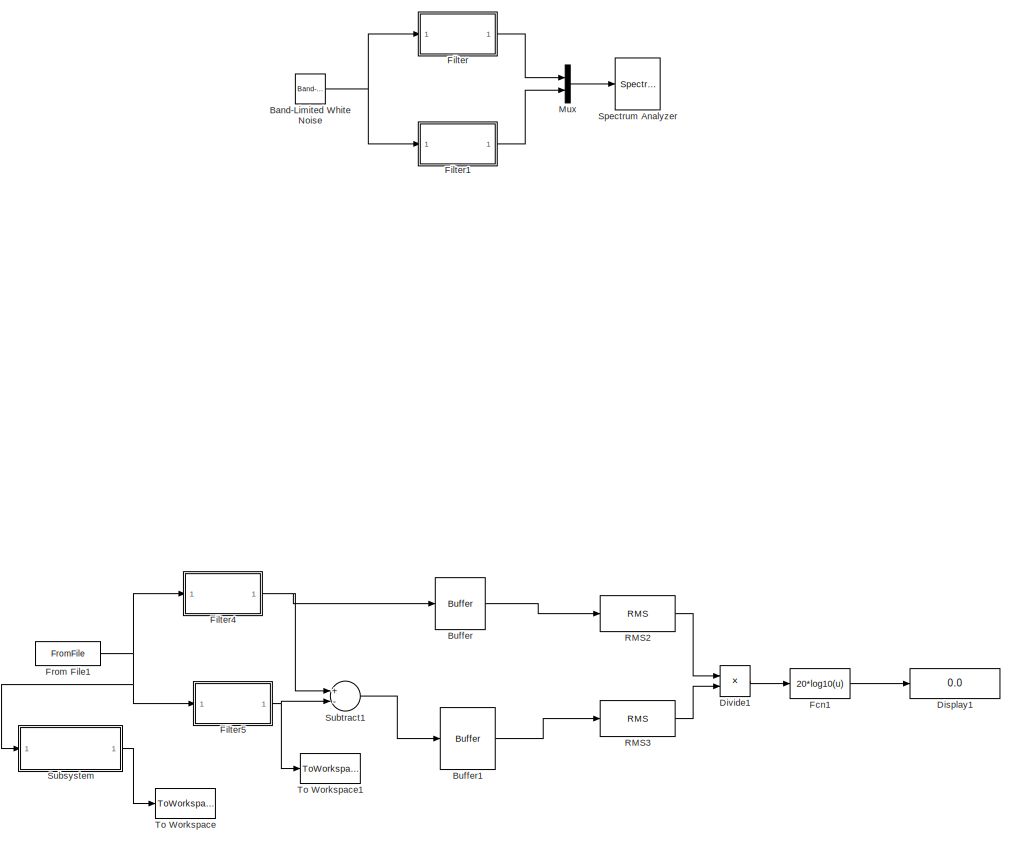
[diagram: root canvas - part 1/2, full width, middle band]
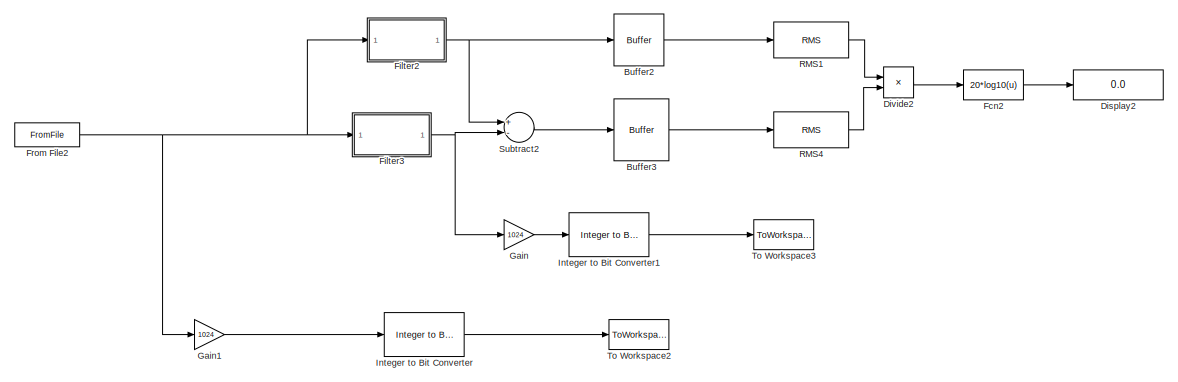
[diagram: root canvas - part 2/2, full width, bottom band]
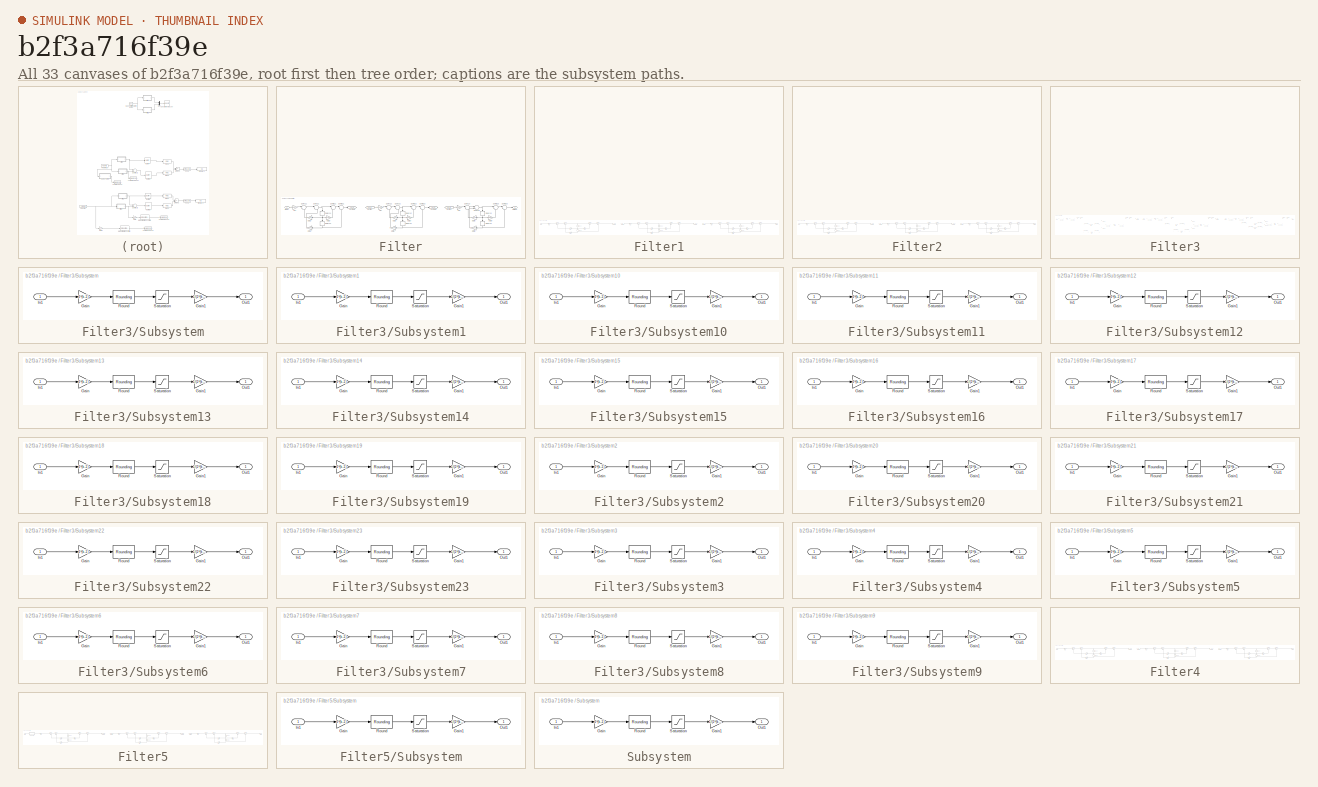
[diagram: thumbnail index - all 33 canvases of the model, root first then tree order]
MODEL slx_b2f3a716f39e
KIND model
CONFIG AbsTol = auto
CONFIG EnableMultiTasking = off
CONFIG FixedStep = auto
CONFIG MaxStep = auto
CONFIG MinStep = auto
CONFIG RelTol = 1e-3
CONFIG SampleTimeConstraint = Unconstrained
CONFIG Solver = VariableStepAuto
CONFIG SolverName = VariableStepAuto
CONFIG StartTime = 0.0
CONFIG StopTime = 10.0
BLOCK [Reference] Band-Limited White Noise  REF=simulink/Sources/Band-Limited
White Noise
  Ports = [0, 1]
  SourceBlock = simulink/Sources/Band-Limited\nWhite Noise
  SourceProductBaseCode = SL
  SourceProductName = Simulink
  SourceType = Band-Limited White Noise.
BLOCK [Buffer] Buffer
  OutputFrames = off
BLOCK [Buffer] Buffer1
  OutputFrames = off
BLOCK [Buffer] Buffer2
  OutputFrames = off
BLOCK [Buffer] Buffer3
  OutputFrames = off
BLOCK [Display] Display1
  Decimation = 1
  Ports = [1]
BLOCK [Display] Display2
  Decimation = 1
  Ports = [1]
BLOCK [Product] Divide1
  InputSameDT = off
  Inputs = */
  OutDataTypeStr = Inherit: Inherit via internal rule
  Ports = [2, 1]
  RndMeth = Floor
  SaturateOnIntegerOverflow = off
BLOCK [Product] Divide2
  InputSameDT = off
  Inputs = */
  OutDataTypeStr = Inherit: Inherit via internal rule
  Ports = [2, 1]
  RndMeth = Floor
  SaturateOnIntegerOverflow = off
BLOCK [Fcn] Fcn1
  Expr = 20*log10(u)
BLOCK [Fcn] Fcn2
  Expr = 20*log10(u)
BLOCK [SubSystem] Filter
  ErrorFcn = dspFilterRealizedInBasicElemsAlgLoopErrFcnCallback
  Ports = [1, 1]
  RequestExecContextInheritance = off
  Tag = FilterWizardSubSystem
  UserDataPersistent = on
  Variant = off
BLOCK [Delay] Filter/Delay11
  DelayLength = 1
  InitialCondition = 0
  InputPortMap = u0
  Ports = [1, 1]
BLOCK [Delay] Filter/Delay12
  DelayLength = 1
  InitialCondition = 0
  InputPortMap = u0
  Ports = [1, 1]
BLOCK [Delay] Filter/Delay13
  DelayLength = 1
  InitialCondition = 0
  InputPortMap = u0
  Ports = [1, 1]
BLOCK [Delay] Filter/Delay21
  DelayLength = 1
  InitialCondition = 0
  InputPortMap = u0
  Ports = [1, 1]
BLOCK [Delay] Filter/Delay22
  DelayLength = 1
  InitialCondition = 0
  InputPortMap = u0
  Ports = [1, 1]
BLOCK [Delay] Filter/Delay23
  DelayLength = 1
  InitialCondition = 0
  InputPortMap = u0
  Ports = [1, 1]
BLOCK [Inport] Filter/Input
  IconDisplay = Port number
BLOCK [Outport] Filter/Output
  IconDisplay = Port number
BLOCK [From] Filter/SectIn2
  GotoTag = Sect1
BLOCK [From] Filter/SectIn3
  GotoTag = Sect2
BLOCK [Goto] Filter/SectOut1
  GotoTag = Sect1
BLOCK [Goto] Filter/SectOut2
  GotoTag = Sect2
BLOCK [Sum] Filter/SumA21
  IconShape = round
  InputSameDT = off
  Inputs = |+-
  Ports = [2, 1]
  RndMeth = Nearest
BLOCK [Sum] Filter/SumA22
  IconShape = round
  InputSameDT = off
  Inputs = |+-
  Ports = [2, 1]
  RndMeth = Nearest
BLOCK [Sum] Filter/SumA23
  IconShape = round
  InputSameDT = off
  Inputs = |+-
  Ports = [2, 1]
  RndMeth = Nearest
BLOCK [Sum] Filter/SumA31
  IconShape = round
  InputSameDT = off
  Inputs = |+-
  Ports = [2, 1]
  RndMeth = Nearest
BLOCK [Sum] Filter/SumA32
  IconShape = round
  InputSameDT = off
  Inputs = |+-
  Ports = [2, 1]
  RndMeth = Nearest
BLOCK [Sum] Filter/SumA33
  IconShape = round
  InputSameDT = off
  Inputs = |+-
  Ports = [2, 1]
  RndMeth = Nearest
BLOCK [Sum] Filter/SumB21
  IconShape = round
  InputSameDT = off
  Inputs = |++
  Ports = [2, 1]
  RndMeth = Nearest
BLOCK [Sum] Filter/SumB22
  IconShape = round
  InputSameDT = off
  Inputs = |++
  Ports = [2, 1]
  RndMeth = Nearest
BLOCK [Sum] Filter/SumB23
  IconShape = round
  InputSameDT = off
  Inputs = |++
  Ports = [2, 1]
  RndMeth = Nearest
BLOCK [Sum] Filter/SumB31
  IconShape = round
  InputSameDT = off
  Inputs = |++
  Ports = [2, 1]
  RndMeth = Nearest
BLOCK [Sum] Filter/SumB32
  IconShape = round
  InputSameDT = off
  Inputs = |++
  Ports = [2, 1]
  RndMeth = Nearest
BLOCK [Sum] Filter/SumB33
  IconShape = round
  InputSameDT = off
  Inputs = |++
  Ports = [2, 1]
  RndMeth = Nearest
BLOCK [Gain] Filter/a(2)(1)
  Gain = -1.72237599432170896
  ParamDataTypeStr = double
  RndMeth = Nearest
BLOCK [Gain] Filter/a(2)(2)
  Gain = -1.72705256097480264
  ParamDataTypeStr = double
  RndMeth = Nearest
BLOCK [Gain] Filter/a(2)(3)
  Gain = -1.73755518539052489
  ParamDataTypeStr = double
  RndMeth = Nearest
BLOCK [Gain] Filter/a(3)(1)
  Gain = 0.868608295135569031
  ParamDataTypeStr = double
  RndMeth = Nearest
BLOCK [Gain] Filter/a(3)(2)
  Gain = 0.76575272159101615
  ParamDataTypeStr = double
  RndMeth = Nearest
BLOCK [Gain] Filter/a(3)(3)
  Gain = 0.962513882588003633
  ParamDataTypeStr = double
  RndMeth = Nearest
BLOCK [Gain] Filter/b(2)(1)
  Gain = -1.37905756840912064
  ParamDataTypeStr = double
  RndMeth = Nearest
BLOCK [Gain] Filter/b(2)(2)
  Gain = 0.142312974670270875
  ParamDataTypeStr = double
  RndMeth = Nearest
BLOCK [Gain] Filter/b(2)(3)
  Gain = -1.58625205435101768
  ParamDataTypeStr = double
  RndMeth = Nearest
BLOCK [Gain] Filter/s(1)
  Gain = 0.499132479456427858
  ParamDataTypeStr = double
  RndMeth = Nearest
BLOCK [Gain] Filter/s(2)
  Gain = 0.416654319236726134
  ParamDataTypeStr = double
  RndMeth = Nearest
BLOCK [Gain] Filter/s(3)
  Gain = 0.00991281595558810534
  ParamDataTypeStr = double
  RndMeth = Nearest
BLOCK [SubSystem] Filter1
  ErrorFcn = dspFilterRealizedInBasicElemsAlgLoopErrFcnCallback
  Ports = [1, 1]
  RequestExecContextInheritance = off
  Tag = FilterWizardSubSystem
  UserDataPersistent = on
  Variant = off
BLOCK [Delay] Filter1/Delay11
  DelayLength = 1
  InitialCondition = 0
  InputPortMap = u0
  Ports = [1, 1]
BLOCK [Delay] Filter1/Delay12
  DelayLength = 1
  InitialCondition = 0
  InputPortMap = u0
  Ports = [1, 1]
BLOCK [Delay] Filter1/Delay13
  DelayLength = 1
  InitialCondition = 0
  InputPortMap = u0
  Ports = [1, 1]
BLOCK [Delay] Filter1/Delay21
  DelayLength = 1
  InitialCondition = 0
  InputPortMap = u0
  Ports = [1, 1]
BLOCK [Delay] Filter1/Delay22
  DelayLength = 1
  InitialCondition = 0
  InputPortMap = u0
  Ports = [1, 1]
BLOCK [Delay] Filter1/Delay23
  DelayLength = 1
  InitialCondition = 0
  InputPortMap = u0
  Ports = [1, 1]
BLOCK [Inport] Filter1/Input
  IconDisplay = Port number
BLOCK [Outport] Filter1/Output
  IconDisplay = Port number
BLOCK [From] Filter1/SectIn2
  GotoTag = Sect1
BLOCK [From] Filter1/SectIn3
  GotoTag = Sect2
BLOCK [Goto] Filter1/SectOut1
  GotoTag = Sect1
BLOCK [Goto] Filter1/SectOut2
  GotoTag = Sect2
BLOCK [Sum] Filter1/SumA21
  IconShape = round
  InputSameDT = off
  Inputs = |+-
  Ports = [2, 1]
  RndMeth = Nearest
BLOCK [Sum] Filter1/SumA22
  IconShape = round
  InputSameDT = off
  Inputs = |+-
  Ports = [2, 1]
  RndMeth = Nearest
BLOCK [Sum] Filter1/SumA23
  IconShape = round
  InputSameDT = off
  Inputs = |+-
  Ports = [2, 1]
  RndMeth = Nearest
BLOCK [Sum] Filter1/SumA31
  IconShape = round
  InputSameDT = off
  Inputs = |+-
  Ports = [2, 1]
  RndMeth = Nearest
BLOCK [Sum] Filter1/SumA32
  IconShape = round
  InputSameDT = off
  Inputs = |+-
  Ports = [2, 1]
  RndMeth = Nearest
BLOCK [Sum] Filter1/SumA33
  IconShape = round
  InputSameDT = off
  Inputs = |+-
  Ports = [2, 1]
  RndMeth = Nearest
BLOCK [Sum] Filter1/SumB21
  IconShape = round
  InputSameDT = off
  Inputs = |++
  Ports = [2, 1]
  RndMeth = Nearest
BLOCK [Sum] Filter1/SumB22
  IconShape = round
  InputSameDT = off
  Inputs = |++
  Ports = [2, 1]
  RndMeth = Nearest
BLOCK [Sum] Filter1/SumB23
  IconShape = round
  InputSameDT = off
  Inputs = |++
  Ports = [2, 1]
  RndMeth = Nearest
BLOCK [Sum] Filter1/SumB31
  IconShape = round
  InputSameDT = off
  Inputs = |++
  Ports = [2, 1]
  RndMeth = Nearest
BLOCK [Sum] Filter1/SumB32
  IconShape = round
  InputSameDT = off
  Inputs = |++
  Ports = [2, 1]
  RndMeth = Nearest
BLOCK [Sum] Filter1/SumB33
  IconShape = round
  InputSameDT = off
  Inputs = |++
  Ports = [2, 1]
  RndMeth = Nearest
BLOCK [Gain] Filter1/a(2)(1)
  Gain = round(-1.72237599432170896*2^(ck-1))/(2^(ck-1))
  ParamDataTypeStr = double
  RndMeth = Nearest
BLOCK [Gain] Filter1/a(2)(2)
  Gain = round(-1.72705256097480264*2^(ck-1))/(2^(ck-1))
  ParamDataTypeStr = double
  RndMeth = Nearest
BLOCK [Gain] Filter1/a(2)(3)
  Gain = round(-1.73755518539052489*2^(ck-1))/(2^(ck-1))
  ParamDataTypeStr = double
  RndMeth = Nearest
BLOCK [Gain] Filter1/a(3)(1)
  Gain = round(0.868608295135569031*2^(ck-1))/(2^(ck-1))
  ParamDataTypeStr = double
  RndMeth = Nearest
BLOCK [Gain] Filter1/a(3)(2)
  Gain = round(0.76575272159101615*2^(ck-1))/(2^(ck-1))
  ParamDataTypeStr = double
  RndMeth = Nearest
BLOCK [Gain] Filter1/a(3)(3)
  Gain = round(0.962513882588003633*2^(ck-1))/(2^(ck-1))
  ParamDataTypeStr = double
  RndMeth = Nearest
BLOCK [Gain] Filter1/b(2)(1)
  Gain = round(-1.37905756840912064*2^(ck-1))/(2^(ck-1))
  ParamDataTypeStr = double
  RndMeth = Nearest
BLOCK [Gain] Filter1/b(2)(2)
  Gain = round(0.142312974670270875*2^(ck-1))/(2^(ck-1))
  ParamDataTypeStr = double
  RndMeth = Nearest
BLOCK [Gain] Filter1/b(2)(3)
  Gain = round(-1.58625205435101768*2^(ck-1))/(2^(ck-1))
  ParamDataTypeStr = double
  RndMeth = Nearest
BLOCK [Gain] Filter1/s(1)
  Gain = round(0.499132479456427858*2^(ck-1))/(2^(ck-1))
  ParamDataTypeStr = double
  RndMeth = Nearest
BLOCK [Gain] Filter1/s(2)
  Gain = round(0.416654319236726134*2^(ck-1))/(2^(ck-1))
  ParamDataTypeStr = double
  RndMeth = Nearest
BLOCK [Gain] Filter1/s(3)
  Gain = round(0.00991281595558810534*2^(ck-1))/(2^(ck-1))
  ParamDataTypeStr = double
  RndMeth = Nearest
BLOCK [SubSystem] Filter2
  ErrorFcn = dspFilterRealizedInBasicElemsAlgLoopErrFcnCallback
  Ports = [1, 1]
  RequestExecContextInheritance = off
  Tag = FilterWizardSubSystem
  UserDataPersistent = on
  Variant = off
BLOCK [Delay] Filter2/Delay11
  DelayLength = 1
  InitialCondition = 0
  InputPortMap = u0
  Ports = [1, 1]
BLOCK [Delay] Filter2/Delay12
  DelayLength = 1
  InitialCondition = 0
  InputPortMap = u0
  Ports = [1, 1]
BLOCK [Delay] Filter2/Delay13
  DelayLength = 1
  InitialCondition = 0
  InputPortMap = u0
  Ports = [1, 1]
BLOCK [Delay] Filter2/Delay21
  DelayLength = 1
  InitialCondition = 0
  InputPortMap = u0
  Ports = [1, 1]
BLOCK [Delay] Filter2/Delay22
  DelayLength = 1
  InitialCondition = 0
  InputPortMap = u0
  Ports = [1, 1]
BLOCK [Delay] Filter2/Delay23
  DelayLength = 1
  InitialCondition = 0
  InputPortMap = u0
  Ports = [1, 1]
BLOCK [Inport] Filter2/Input
  IconDisplay = Port number
BLOCK [Outport] Filter2/Output
  IconDisplay = Port number
BLOCK [From] Filter2/SectIn2
  GotoTag = Sect1
BLOCK [From] Filter2/SectIn3
  GotoTag = Sect2
BLOCK [Goto] Filter2/SectOut1
  GotoTag = Sect1
BLOCK [Goto] Filter2/SectOut2
  GotoTag = Sect2
BLOCK [Sum] Filter2/SumA21
  IconShape = round
  InputSameDT = off
  Inputs = |+-
  Ports = [2, 1]
  RndMeth = Nearest
BLOCK [Sum] Filter2/SumA22
  IconShape = round
  InputSameDT = off
  Inputs = |+-
  Ports = [2, 1]
  RndMeth = Nearest
BLOCK [Sum] Filter2/SumA23
  IconShape = round
  InputSameDT = off
  Inputs = |+-
  Ports = [2, 1]
  RndMeth = Nearest
BLOCK [Sum] Filter2/SumA31
  IconShape = round
  InputSameDT = off
  Inputs = |+-
  Ports = [2, 1]
  RndMeth = Nearest
BLOCK [Sum] Filter2/SumA32
  IconShape = round
  InputSameDT = off
  Inputs = |+-
  Ports = [2, 1]
  RndMeth = Nearest
BLOCK [Sum] Filter2/SumA33
  IconShape = round
  InputSameDT = off
  Inputs = |+-
  Ports = [2, 1]
  RndMeth = Nearest
BLOCK [Sum] Filter2/SumB21
  IconShape = round
  InputSameDT = off
  Inputs = |++
  Ports = [2, 1]
  RndMeth = Nearest
BLOCK [Sum] Filter2/SumB22
  IconShape = round
  InputSameDT = off
  Inputs = |++
  Ports = [2, 1]
  RndMeth = Nearest
BLOCK [Sum] Filter2/SumB23
  IconShape = round
  InputSameDT = off
  Inputs = |++
  Ports = [2, 1]
  RndMeth = Nearest
BLOCK [Sum] Filter2/SumB31
  IconShape = round
  InputSameDT = off
  Inputs = |++
  Ports = [2, 1]
  RndMeth = Nearest
BLOCK [Sum] Filter2/SumB32
  IconShape = round
  InputSameDT = off
  Inputs = |++
  Ports = [2, 1]
  RndMeth = Nearest
BLOCK [Sum] Filter2/SumB33
  IconShape = round
  InputSameDT = off
  Inputs = |++
  Ports = [2, 1]
  RndMeth = Nearest
BLOCK [Gain] Filter2/a(2)(1)
  Gain = -1.72237599432170896
  ParamDataTypeStr = double
  RndMeth = Nearest
BLOCK [Gain] Filter2/a(2)(2)
  Gain = -1.72705256097480264
  ParamDataTypeStr = double
  RndMeth = Nearest
BLOCK [Gain] Filter2/a(2)(3)
  Gain = -1.73755518539052489
  ParamDataTypeStr = double
  RndMeth = Nearest
BLOCK [Gain] Filter2/a(3)(1)
  Gain = 0.868608295135569031
  ParamDataTypeStr = double
  RndMeth = Nearest
BLOCK [Gain] Filter2/a(3)(2)
  Gain = 0.76575272159101615
  ParamDataTypeStr = double
  RndMeth = Nearest
BLOCK [Gain] Filter2/a(3)(3)
  Gain = 0.962513882588003633
  ParamDataTypeStr = double
  RndMeth = Nearest
BLOCK [Gain] Filter2/b(2)(1)
  Gain = -1.37905756840912064
  ParamDataTypeStr = double
  RndMeth = Nearest
BLOCK [Gain] Filter2/b(2)(2)
  Gain = 0.142312974670270875
  ParamDataTypeStr = double
  RndMeth = Nearest
BLOCK [Gain] Filter2/b(2)(3)
  Gain = -1.58625205435101768
  ParamDataTypeStr = double
  RndMeth = Nearest
BLOCK [Gain] Filter2/s(1)
  Gain = 0.499132479456427858
  ParamDataTypeStr = double
  RndMeth = Nearest
BLOCK [Gain] Filter2/s(2)
  Gain = 0.416654319236726134
  ParamDataTypeStr = double
  RndMeth = Nearest
BLOCK [Gain] Filter2/s(3)
  Gain = 0.00991281595558810534
  ParamDataTypeStr = double
  RndMeth = Nearest
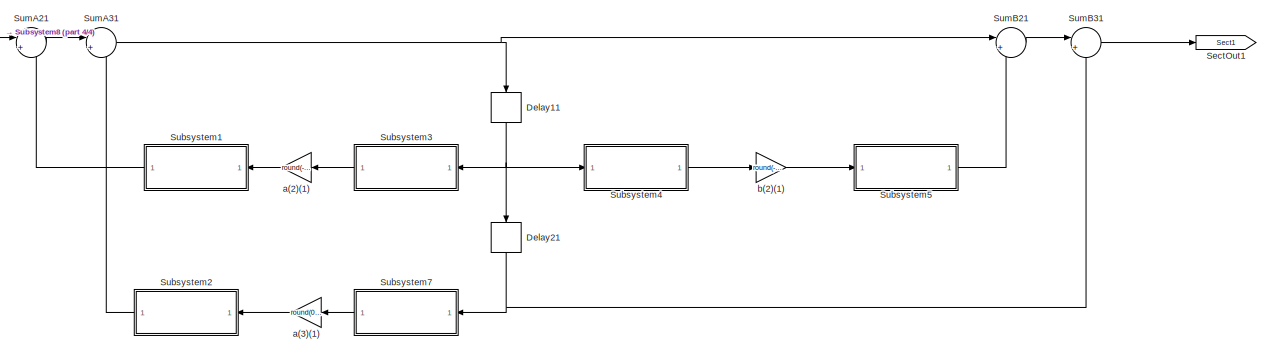
[diagram: Filter3 - part 1/4, left side, full height]
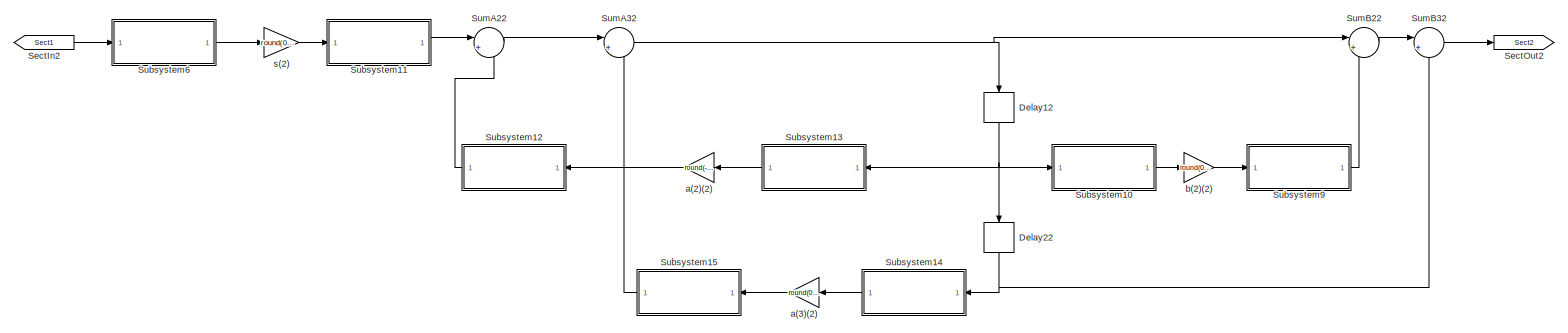
[diagram: Filter3 - part 2/4, center side, full height]
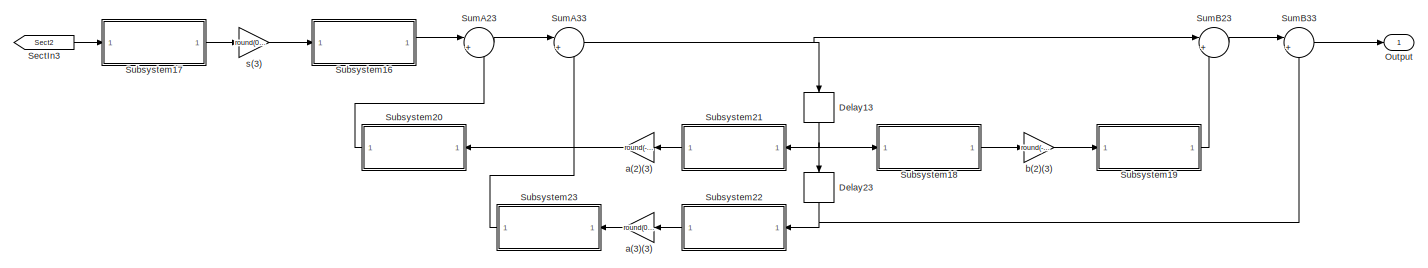
[diagram: Filter3 - part 3/4, middle right region]
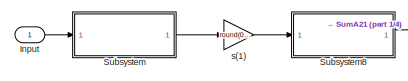
[diagram: Filter3 - part 4/4, top left region]
BLOCK [SubSystem] Filter3
  ErrorFcn = dspFilterRealizedInBasicElemsAlgLoopErrFcnCallback
  Ports = [1, 1]
  RequestExecContextInheritance = off
  Tag = FilterWizardSubSystem
  UserDataPersistent = on
  Variant = off
BLOCK [Delay] Filter3/Delay11
  DelayLength = 1
  InitialCondition = 0
  InputPortMap = u0
  Ports = [1, 1]
BLOCK [Delay] Filter3/Delay12
  DelayLength = 1
  InitialCondition = 0
  InputPortMap = u0
  Ports = [1, 1]
BLOCK [Delay] Filter3/Delay13
  DelayLength = 1
  InitialCondition = 0
  InputPortMap = u0
  Ports = [1, 1]
BLOCK [Delay] Filter3/Delay21
  DelayLength = 1
  InitialCondition = 0
  InputPortMap = u0
  Ports = [1, 1]
BLOCK [Delay] Filter3/Delay22
  DelayLength = 1
  InitialCondition = 0
  InputPortMap = u0
  Ports = [1, 1]
BLOCK [Delay] Filter3/Delay23
  DelayLength = 1
  InitialCondition = 0
  InputPortMap = u0
  Ports = [1, 1]
BLOCK [Inport] Filter3/Input
  IconDisplay = Port number
BLOCK [Outport] Filter3/Output
  IconDisplay = Port number
BLOCK [From] Filter3/SectIn2
  GotoTag = Sect1
BLOCK [From] Filter3/SectIn3
  GotoTag = Sect2
BLOCK [Goto] Filter3/SectOut1
  GotoTag = Sect1
BLOCK [Goto] Filter3/SectOut2
  GotoTag = Sect2
BLOCK [SubSystem] Filter3/Subsystem
  Ports = [1, 1]
  RequestExecContextInheritance = off
  Variant = off
BLOCK [Gain] Filter3/Subsystem/Gain
  Gain = 2^(k-1)
  OutDataTypeStr = Inherit: Inherit via internal rule
  ParamDataTypeStr = Inherit: Inherit via internal rule
  SaturateOnIntegerOverflow = off
BLOCK [Gain] Filter3/Subsystem/Gain1
  Gain = 1/(2^(k-1))
  OutDataTypeStr = Inherit: Inherit via internal rule
  ParamDataTypeStr = Inherit: Inherit via internal rule
  SaturateOnIntegerOverflow = off
BLOCK [Inport] Filter3/Subsystem/In1
  IconDisplay = Port number
BLOCK [Outport] Filter3/Subsystem/Out1
  IconDisplay = Port number
BLOCK [Rounding] Filter3/Subsystem/Round
  Operator = round
BLOCK [Saturate] Filter3/Subsystem/Saturation
  InputPortMap = u0
  LowerLimit = -2^(k+s-1)
  Ports = [1, 1]
  UpperLimit = 2^(k+s+-1)-1
BLOCK [SubSystem] Filter3/Subsystem1
  Ports = [1, 1]
  RequestExecContextInheritance = off
  Variant = off
BLOCK [Gain] Filter3/Subsystem1/Gain
  Gain = 2^(k-1)
  OutDataTypeStr = Inherit: Inherit via internal rule
  ParamDataTypeStr = Inherit: Inherit via internal rule
  SaturateOnIntegerOverflow = off
BLOCK [Gain] Filter3/Subsystem1/Gain1
  Gain = 1/(2^(k-1))
  OutDataTypeStr = Inherit: Inherit via internal rule
  ParamDataTypeStr = Inherit: Inherit via internal rule
  SaturateOnIntegerOverflow = off
BLOCK [Inport] Filter3/Subsystem1/In1
  IconDisplay = Port number
BLOCK [Outport] Filter3/Subsystem1/Out1
  IconDisplay = Port number
BLOCK [Rounding] Filter3/Subsystem1/Round
  Operator = round
BLOCK [Saturate] Filter3/Subsystem1/Saturation
  InputPortMap = u0
  LowerLimit = -2^(k+s-1)
  Ports = [1, 1]
  UpperLimit = 2^(k+s+-1)-1
BLOCK [SubSystem] Filter3/Subsystem10
  Ports = [1, 1]
  RequestExecContextInheritance = off
  Variant = off
BLOCK [Gain] Filter3/Subsystem10/Gain
  Gain = 2^(k-1)
  OutDataTypeStr = Inherit: Inherit via internal rule
  ParamDataTypeStr = Inherit: Inherit via internal rule
  SaturateOnIntegerOverflow = off
BLOCK [Gain] Filter3/Subsystem10/Gain1
  Gain = 1/(2^(k-1))
  OutDataTypeStr = Inherit: Inherit via internal rule
  ParamDataTypeStr = Inherit: Inherit via internal rule
  SaturateOnIntegerOverflow = off
BLOCK [Inport] Filter3/Subsystem10/In1
  IconDisplay = Port number
BLOCK [Outport] Filter3/Subsystem10/Out1
  IconDisplay = Port number
BLOCK [Rounding] Filter3/Subsystem10/Round
  Operator = round
BLOCK [Saturate] Filter3/Subsystem10/Saturation
  InputPortMap = u0
  LowerLimit = -2^(k+s-1)
  Ports = [1, 1]
  UpperLimit = 2^(k+s+-1)-1
BLOCK [SubSystem] Filter3/Subsystem11
  Ports = [1, 1]
  RequestExecContextInheritance = off
  Variant = off
BLOCK [Gain] Filter3/Subsystem11/Gain
  Gain = 2^(k-1)
  OutDataTypeStr = Inherit: Inherit via internal rule
  ParamDataTypeStr = Inherit: Inherit via internal rule
  SaturateOnIntegerOverflow = off
BLOCK [Gain] Filter3/Subsystem11/Gain1
  Gain = 1/(2^(k-1))
  OutDataTypeStr = Inherit: Inherit via internal rule
  ParamDataTypeStr = Inherit: Inherit via internal rule
  SaturateOnIntegerOverflow = off
BLOCK [Inport] Filter3/Subsystem11/In1
  IconDisplay = Port number
BLOCK [Outport] Filter3/Subsystem11/Out1
  IconDisplay = Port number
BLOCK [Rounding] Filter3/Subsystem11/Round
  Operator = round
BLOCK [Saturate] Filter3/Subsystem11/Saturation
  InputPortMap = u0
  LowerLimit = -2^(k+s-1)
  Ports = [1, 1]
  UpperLimit = 2^(k+s+-1)-1
BLOCK [SubSystem] Filter3/Subsystem12
  Ports = [1, 1]
  RequestExecContextInheritance = off
  Variant = off
BLOCK [Gain] Filter3/Subsystem12/Gain
  Gain = 2^(k-1)
  OutDataTypeStr = Inherit: Inherit via internal rule
  ParamDataTypeStr = Inherit: Inherit via internal rule
  SaturateOnIntegerOverflow = off
BLOCK [Gain] Filter3/Subsystem12/Gain1
  Gain = 1/(2^(k-1))
  OutDataTypeStr = Inherit: Inherit via internal rule
  ParamDataTypeStr = Inherit: Inherit via internal rule
  SaturateOnIntegerOverflow = off
BLOCK [Inport] Filter3/Subsystem12/In1
  IconDisplay = Port number
BLOCK [Outport] Filter3/Subsystem12/Out1
  IconDisplay = Port number
BLOCK [Rounding] Filter3/Subsystem12/Round
  Operator = round
BLOCK [Saturate] Filter3/Subsystem12/Saturation
  InputPortMap = u0
  LowerLimit = -2^(k+s-1)
  Ports = [1, 1]
  UpperLimit = 2^(k+s+-1)-1
BLOCK [SubSystem] Filter3/Subsystem13
  Ports = [1, 1]
  RequestExecContextInheritance = off
  Variant = off
BLOCK [Gain] Filter3/Subsystem13/Gain
  Gain = 2^(k-1)
  OutDataTypeStr = Inherit: Inherit via internal rule
  ParamDataTypeStr = Inherit: Inherit via internal rule
  SaturateOnIntegerOverflow = off
BLOCK [Gain] Filter3/Subsystem13/Gain1
  Gain = 1/(2^(k-1))
  OutDataTypeStr = Inherit: Inherit via internal rule
  ParamDataTypeStr = Inherit: Inherit via internal rule
  SaturateOnIntegerOverflow = off
BLOCK [Inport] Filter3/Subsystem13/In1
  IconDisplay = Port number
BLOCK [Outport] Filter3/Subsystem13/Out1
  IconDisplay = Port number
BLOCK [Rounding] Filter3/Subsystem13/Round
  Operator = round
BLOCK [Saturate] Filter3/Subsystem13/Saturation
  InputPortMap = u0
  LowerLimit = -2^(k+s-1)
  Ports = [1, 1]
  UpperLimit = 2^(k+s+-1)-1
BLOCK [SubSystem] Filter3/Subsystem14
  Ports = [1, 1]
  RequestExecContextInheritance = off
  Variant = off
BLOCK [Gain] Filter3/Subsystem14/Gain
  Gain = 2^(k-1)
  OutDataTypeStr = Inherit: Inherit via internal rule
  ParamDataTypeStr = Inherit: Inherit via internal rule
  SaturateOnIntegerOverflow = off
BLOCK [Gain] Filter3/Subsystem14/Gain1
  Gain = 1/(2^(k-1))
  OutDataTypeStr = Inherit: Inherit via internal rule
  ParamDataTypeStr = Inherit: Inherit via internal rule
  SaturateOnIntegerOverflow = off
BLOCK [Inport] Filter3/Subsystem14/In1
  IconDisplay = Port number
BLOCK [Outport] Filter3/Subsystem14/Out1
  IconDisplay = Port number
BLOCK [Rounding] Filter3/Subsystem14/Round
  Operator = round
BLOCK [Saturate] Filter3/Subsystem14/Saturation
  InputPortMap = u0
  LowerLimit = -2^(k+s-1)
  Ports = [1, 1]
  UpperLimit = 2^(k+s+-1)-1
BLOCK [SubSystem] Filter3/Subsystem15
  Ports = [1, 1]
  RequestExecContextInheritance = off
  Variant = off
BLOCK [Gain] Filter3/Subsystem15/Gain
  Gain = 2^(k-1)
  OutDataTypeStr = Inherit: Inherit via internal rule
  ParamDataTypeStr = Inherit: Inherit via internal rule
  SaturateOnIntegerOverflow = off
BLOCK [Gain] Filter3/Subsystem15/Gain1
  Gain = 1/(2^(k-1))
  OutDataTypeStr = Inherit: Inherit via internal rule
  ParamDataTypeStr = Inherit: Inherit via internal rule
  SaturateOnIntegerOverflow = off
BLOCK [Inport] Filter3/Subsystem15/In1
  IconDisplay = Port number
BLOCK [Outport] Filter3/Subsystem15/Out1
  IconDisplay = Port number
BLOCK [Rounding] Filter3/Subsystem15/Round
  Operator = round
BLOCK [Saturate] Filter3/Subsystem15/Saturation
  InputPortMap = u0
  LowerLimit = -2^(k+s-1)
  Ports = [1, 1]
  UpperLimit = 2^(k+s+-1)-1
BLOCK [SubSystem] Filter3/Subsystem16
  Ports = [1, 1]
  RequestExecContextInheritance = off
  Variant = off
BLOCK [Gain] Filter3/Subsystem16/Gain
  Gain = 2^(k-1)
  OutDataTypeStr = Inherit: Inherit via internal rule
  ParamDataTypeStr = Inherit: Inherit via internal rule
  SaturateOnIntegerOverflow = off
BLOCK [Gain] Filter3/Subsystem16/Gain1
  Gain = 1/(2^(k-1))
  OutDataTypeStr = Inherit: Inherit via internal rule
  ParamDataTypeStr = Inherit: Inherit via internal rule
  SaturateOnIntegerOverflow = off
BLOCK [Inport] Filter3/Subsystem16/In1
  IconDisplay = Port number
BLOCK [Outport] Filter3/Subsystem16/Out1
  IconDisplay = Port number
BLOCK [Rounding] Filter3/Subsystem16/Round
  Operator = round
BLOCK [Saturate] Filter3/Subsystem16/Saturation
  InputPortMap = u0
  LowerLimit = -2^(k+s-1)
  Ports = [1, 1]
  UpperLimit = 2^(k+s+-1)-1
BLOCK [SubSystem] Filter3/Subsystem17
  Ports = [1, 1]
  RequestExecContextInheritance = off
  Variant = off
BLOCK [Gain] Filter3/Subsystem17/Gain
  Gain = 2^(k-1)
  OutDataTypeStr = Inherit: Inherit via internal rule
  ParamDataTypeStr = Inherit: Inherit via internal rule
  SaturateOnIntegerOverflow = off
BLOCK [Gain] Filter3/Subsystem17/Gain1
  Gain = 1/(2^(k-1))
  OutDataTypeStr = Inherit: Inherit via internal rule
  ParamDataTypeStr = Inherit: Inherit via internal rule
  SaturateOnIntegerOverflow = off
BLOCK [Inport] Filter3/Subsystem17/In1
  IconDisplay = Port number
BLOCK [Outport] Filter3/Subsystem17/Out1
  IconDisplay = Port number
BLOCK [Rounding] Filter3/Subsystem17/Round
  Operator = round
BLOCK [Saturate] Filter3/Subsystem17/Saturation
  InputPortMap = u0
  LowerLimit = -2^(k+s-1)
  Ports = [1, 1]
  UpperLimit = 2^(k+s+-1)-1
BLOCK [SubSystem] Filter3/Subsystem18
  Ports = [1, 1]
  RequestExecContextInheritance = off
  Variant = off
BLOCK [Gain] Filter3/Subsystem18/Gain
  Gain = 2^(k-1)
  OutDataTypeStr = Inherit: Inherit via internal rule
  ParamDataTypeStr = Inherit: Inherit via internal rule
  SaturateOnIntegerOverflow = off
BLOCK [Gain] Filter3/Subsystem18/Gain1
  Gain = 1/(2^(k-1))
  OutDataTypeStr = Inherit: Inherit via internal rule
  ParamDataTypeStr = Inherit: Inherit via internal rule
  SaturateOnIntegerOverflow = off
BLOCK [Inport] Filter3/Subsystem18/In1
  IconDisplay = Port number
BLOCK [Outport] Filter3/Subsystem18/Out1
  IconDisplay = Port number
BLOCK [Rounding] Filter3/Subsystem18/Round
  Operator = round
BLOCK [Saturate] Filter3/Subsystem18/Saturation
  InputPortMap = u0
  LowerLimit = -2^(k+s-1)
  Ports = [1, 1]
  UpperLimit = 2^(k+s+-1)-1
BLOCK [SubSystem] Filter3/Subsystem19
  Ports = [1, 1]
  RequestExecContextInheritance = off
  Variant = off
BLOCK [Gain] Filter3/Subsystem19/Gain
  Gain = 2^(k-1)
  OutDataTypeStr = Inherit: Inherit via internal rule
  ParamDataTypeStr = Inherit: Inherit via internal rule
  SaturateOnIntegerOverflow = off
BLOCK [Gain] Filter3/Subsystem19/Gain1
  Gain = 1/(2^(k-1))
  OutDataTypeStr = Inherit: Inherit via internal rule
  ParamDataTypeStr = Inherit: Inherit via internal rule
  SaturateOnIntegerOverflow = off
BLOCK [Inport] Filter3/Subsystem19/In1
  IconDisplay = Port number
BLOCK [Outport] Filter3/Subsystem19/Out1
  IconDisplay = Port number
BLOCK [Rounding] Filter3/Subsystem19/Round
  Operator = round
BLOCK [Saturate] Filter3/Subsystem19/Saturation
  InputPortMap = u0
  LowerLimit = -2^(k+s-1)
  Ports = [1, 1]
  UpperLimit = 2^(k+s+-1)-1
BLOCK [SubSystem] Filter3/Subsystem2
  Ports = [1, 1]
  RequestExecContextInheritance = off
  Variant = off
BLOCK [Gain] Filter3/Subsystem2/Gain
  Gain = 2^(k-1)
  OutDataTypeStr = Inherit: Inherit via internal rule
  ParamDataTypeStr = Inherit: Inherit via internal rule
  SaturateOnIntegerOverflow = off
BLOCK [Gain] Filter3/Subsystem2/Gain1
  Gain = 1/(2^(k-1))
  OutDataTypeStr = Inherit: Inherit via internal rule
  ParamDataTypeStr = Inherit: Inherit via internal rule
  SaturateOnIntegerOverflow = off
BLOCK [Inport] Filter3/Subsystem2/In1
  IconDisplay = Port number
BLOCK [Outport] Filter3/Subsystem2/Out1
  IconDisplay = Port number
BLOCK [Rounding] Filter3/Subsystem2/Round
  Operator = round
BLOCK [Saturate] Filter3/Subsystem2/Saturation
  InputPortMap = u0
  LowerLimit = -2^(k+s-1)
  Ports = [1, 1]
  UpperLimit = 2^(k+s+-1)-1
BLOCK [SubSystem] Filter3/Subsystem20
  Ports = [1, 1]
  RequestExecContextInheritance = off
  Variant = off
BLOCK [Gain] Filter3/Subsystem20/Gain
  Gain = 2^(k-1)
  OutDataTypeStr = Inherit: Inherit via internal rule
  ParamDataTypeStr = Inherit: Inherit via internal rule
  SaturateOnIntegerOverflow = off
BLOCK [Gain] Filter3/Subsystem20/Gain1
  Gain = 1/(2^(k-1))
  OutDataTypeStr = Inherit: Inherit via internal rule
  ParamDataTypeStr = Inherit: Inherit via internal rule
  SaturateOnIntegerOverflow = off
BLOCK [Inport] Filter3/Subsystem20/In1
  IconDisplay = Port number
BLOCK [Outport] Filter3/Subsystem20/Out1
  IconDisplay = Port number
BLOCK [Rounding] Filter3/Subsystem20/Round
  Operator = round
BLOCK [Saturate] Filter3/Subsystem20/Saturation
  InputPortMap = u0
  LowerLimit = -2^(k+s-1)
  Ports = [1, 1]
  UpperLimit = 2^(k+s+-1)-1
BLOCK [SubSystem] Filter3/Subsystem21
  Ports = [1, 1]
  RequestExecContextInheritance = off
  Variant = off
BLOCK [Gain] Filter3/Subsystem21/Gain
  Gain = 2^(k-1)
  OutDataTypeStr = Inherit: Inherit via internal rule
  ParamDataTypeStr = Inherit: Inherit via internal rule
  SaturateOnIntegerOverflow = off
BLOCK [Gain] Filter3/Subsystem21/Gain1
  Gain = 1/(2^(k-1))
  OutDataTypeStr = Inherit: Inherit via internal rule
  ParamDataTypeStr = Inherit: Inherit via internal rule
  SaturateOnIntegerOverflow = off
BLOCK [Inport] Filter3/Subsystem21/In1
  IconDisplay = Port number
BLOCK [Outport] Filter3/Subsystem21/Out1
  IconDisplay = Port number
BLOCK [Rounding] Filter3/Subsystem21/Round
  Operator = round
BLOCK [Saturate] Filter3/Subsystem21/Saturation
  InputPortMap = u0
  LowerLimit = -2^(k+s-1)
  Ports = [1, 1]
  UpperLimit = 2^(k+s+-1)-1
BLOCK [SubSystem] Filter3/Subsystem22
  Ports = [1, 1]
  RequestExecContextInheritance = off
  Variant = off
BLOCK [Gain] Filter3/Subsystem22/Gain
  Gain = 2^(k-1)
  OutDataTypeStr = Inherit: Inherit via internal rule
  ParamDataTypeStr = Inherit: Inherit via internal rule
  SaturateOnIntegerOverflow = off
BLOCK [Gain] Filter3/Subsystem22/Gain1
  Gain = 1/(2^(k-1))
  OutDataTypeStr = Inherit: Inherit via internal rule
  ParamDataTypeStr = Inherit: Inherit via internal rule
  SaturateOnIntegerOverflow = off
BLOCK [Inport] Filter3/Subsystem22/In1
  IconDisplay = Port number
BLOCK [Outport] Filter3/Subsystem22/Out1
  IconDisplay = Port number
BLOCK [Rounding] Filter3/Subsystem22/Round
  Operator = round
BLOCK [Saturate] Filter3/Subsystem22/Saturation
  InputPortMap = u0
  LowerLimit = -2^(k+s-1)
  Ports = [1, 1]
  UpperLimit = 2^(k+s+-1)-1
BLOCK [SubSystem] Filter3/Subsystem23
  Ports = [1, 1]
  RequestExecContextInheritance = off
  Variant = off
BLOCK [Gain] Filter3/Subsystem23/Gain
  Gain = 2^(k-1)
  OutDataTypeStr = Inherit: Inherit via internal rule
  ParamDataTypeStr = Inherit: Inherit via internal rule
  SaturateOnIntegerOverflow = off
BLOCK [Gain] Filter3/Subsystem23/Gain1
  Gain = 1/(2^(k-1))
  OutDataTypeStr = Inherit: Inherit via internal rule
  ParamDataTypeStr = Inherit: Inherit via internal rule
  SaturateOnIntegerOverflow = off
BLOCK [Inport] Filter3/Subsystem23/In1
  IconDisplay = Port number
BLOCK [Outport] Filter3/Subsystem23/Out1
  IconDisplay = Port number
BLOCK [Rounding] Filter3/Subsystem23/Round
  Operator = round
BLOCK [Saturate] Filter3/Subsystem23/Saturation
  InputPortMap = u0
  LowerLimit = -2^(k+s-1)
  Ports = [1, 1]
  UpperLimit = 2^(k+s+-1)-1
BLOCK [SubSystem] Filter3/Subsystem3
  Ports = [1, 1]
  RequestExecContextInheritance = off
  Variant = off
BLOCK [Gain] Filter3/Subsystem3/Gain
  Gain = 2^(k-1)
  OutDataTypeStr = Inherit: Inherit via internal rule
  ParamDataTypeStr = Inherit: Inherit via internal rule
  SaturateOnIntegerOverflow = off
BLOCK [Gain] Filter3/Subsystem3/Gain1
  Gain = 1/(2^(k-1))
  OutDataTypeStr = Inherit: Inherit via internal rule
  ParamDataTypeStr = Inherit: Inherit via internal rule
  SaturateOnIntegerOverflow = off
BLOCK [Inport] Filter3/Subsystem3/In1
  IconDisplay = Port number
BLOCK [Outport] Filter3/Subsystem3/Out1
  IconDisplay = Port number
BLOCK [Rounding] Filter3/Subsystem3/Round
  Operator = round
BLOCK [Saturate] Filter3/Subsystem3/Saturation
  InputPortMap = u0
  LowerLimit = -2^(k+s-1)
  Ports = [1, 1]
  UpperLimit = 2^(k+s+-1)-1
BLOCK [SubSystem] Filter3/Subsystem4
  Ports = [1, 1]
  RequestExecContextInheritance = off
  Variant = off
BLOCK [Gain] Filter3/Subsystem4/Gain
  Gain = 2^(k-1)
  OutDataTypeStr = Inherit: Inherit via internal rule
  ParamDataTypeStr = Inherit: Inherit via internal rule
  SaturateOnIntegerOverflow = off
BLOCK [Gain] Filter3/Subsystem4/Gain1
  Gain = 1/(2^(k-1))
  OutDataTypeStr = Inherit: Inherit via internal rule
  ParamDataTypeStr = Inherit: Inherit via internal rule
  SaturateOnIntegerOverflow = off
BLOCK [Inport] Filter3/Subsystem4/In1
  IconDisplay = Port number
BLOCK [Outport] Filter3/Subsystem4/Out1
  IconDisplay = Port number
BLOCK [Rounding] Filter3/Subsystem4/Round
  Operator = round
BLOCK [Saturate] Filter3/Subsystem4/Saturation
  InputPortMap = u0
  LowerLimit = -2^(k+s-1)
  Ports = [1, 1]
  UpperLimit = 2^(k+s+-1)-1
BLOCK [SubSystem] Filter3/Subsystem5
  Ports = [1, 1]
  RequestExecContextInheritance = off
  Variant = off
BLOCK [Gain] Filter3/Subsystem5/Gain
  Gain = 2^(k-1)
  OutDataTypeStr = Inherit: Inherit via internal rule
  ParamDataTypeStr = Inherit: Inherit via internal rule
  SaturateOnIntegerOverflow = off
BLOCK [Gain] Filter3/Subsystem5/Gain1
  Gain = 1/(2^(k-1))
  OutDataTypeStr = Inherit: Inherit via internal rule
  ParamDataTypeStr = Inherit: Inherit via internal rule
  SaturateOnIntegerOverflow = off
BLOCK [Inport] Filter3/Subsystem5/In1
  IconDisplay = Port number
BLOCK [Outport] Filter3/Subsystem5/Out1
  IconDisplay = Port number
BLOCK [Rounding] Filter3/Subsystem5/Round
  Operator = round
BLOCK [Saturate] Filter3/Subsystem5/Saturation
  InputPortMap = u0
  LowerLimit = -2^(k+s-1)
  Ports = [1, 1]
  UpperLimit = 2^(k+s+-1)-1
BLOCK [SubSystem] Filter3/Subsystem6
  Ports = [1, 1]
  RequestExecContextInheritance = off
  Variant = off
BLOCK [Gain] Filter3/Subsystem6/Gain
  Gain = 2^(k-1)
  OutDataTypeStr = Inherit: Inherit via internal rule
  ParamDataTypeStr = Inherit: Inherit via internal rule
  SaturateOnIntegerOverflow = off
BLOCK [Gain] Filter3/Subsystem6/Gain1
  Gain = 1/(2^(k-1))
  OutDataTypeStr = Inherit: Inherit via internal rule
  ParamDataTypeStr = Inherit: Inherit via internal rule
  SaturateOnIntegerOverflow = off
BLOCK [Inport] Filter3/Subsystem6/In1
  IconDisplay = Port number
BLOCK [Outport] Filter3/Subsystem6/Out1
  IconDisplay = Port number
BLOCK [Rounding] Filter3/Subsystem6/Round
  Operator = round
BLOCK [Saturate] Filter3/Subsystem6/Saturation
  InputPortMap = u0
  LowerLimit = -2^(k+s-1)
  Ports = [1, 1]
  UpperLimit = 2^(k+s+-1)-1
BLOCK [SubSystem] Filter3/Subsystem7
  Ports = [1, 1]
  RequestExecContextInheritance = off
  Variant = off
BLOCK [Gain] Filter3/Subsystem7/Gain
  Gain = 2^(k-1)
  OutDataTypeStr = Inherit: Inherit via internal rule
  ParamDataTypeStr = Inherit: Inherit via internal rule
  SaturateOnIntegerOverflow = off
BLOCK [Gain] Filter3/Subsystem7/Gain1
  Gain = 1/(2^(k-1))
  OutDataTypeStr = Inherit: Inherit via internal rule
  ParamDataTypeStr = Inherit: Inherit via internal rule
  SaturateOnIntegerOverflow = off
BLOCK [Inport] Filter3/Subsystem7/In1
  IconDisplay = Port number
BLOCK [Outport] Filter3/Subsystem7/Out1
  IconDisplay = Port number
BLOCK [Rounding] Filter3/Subsystem7/Round
  Operator = round
BLOCK [Saturate] Filter3/Subsystem7/Saturation
  InputPortMap = u0
  LowerLimit = -2^(k+s-1)
  Ports = [1, 1]
  UpperLimit = 2^(k+s+-1)-1
BLOCK [SubSystem] Filter3/Subsystem8
  Ports = [1, 1]
  RequestExecContextInheritance = off
  Variant = off
BLOCK [Gain] Filter3/Subsystem8/Gain
  Gain = 2^(k-1)
  OutDataTypeStr = Inherit: Inherit via internal rule
  ParamDataTypeStr = Inherit: Inherit via internal rule
  SaturateOnIntegerOverflow = off
BLOCK [Gain] Filter3/Subsystem8/Gain1
  Gain = 1/(2^(k-1))
  OutDataTypeStr = Inherit: Inherit via internal rule
  ParamDataTypeStr = Inherit: Inherit via internal rule
  SaturateOnIntegerOverflow = off
BLOCK [Inport] Filter3/Subsystem8/In1
  IconDisplay = Port number
BLOCK [Outport] Filter3/Subsystem8/Out1
  IconDisplay = Port number
BLOCK [Rounding] Filter3/Subsystem8/Round
  Operator = round
BLOCK [Saturate] Filter3/Subsystem8/Saturation
  InputPortMap = u0
  LowerLimit = -2^(k+s-1)
  Ports = [1, 1]
  UpperLimit = 2^(k+s+-1)-1
BLOCK [SubSystem] Filter3/Subsystem9
  Ports = [1, 1]
  RequestExecContextInheritance = off
  Variant = off
BLOCK [Gain] Filter3/Subsystem9/Gain
  Gain = 2^(k-1)
  OutDataTypeStr = Inherit: Inherit via internal rule
  ParamDataTypeStr = Inherit: Inherit via internal rule
  SaturateOnIntegerOverflow = off
BLOCK [Gain] Filter3/Subsystem9/Gain1
  Gain = 1/(2^(k-1))
  OutDataTypeStr = Inherit: Inherit via internal rule
  ParamDataTypeStr = Inherit: Inherit via internal rule
  SaturateOnIntegerOverflow = off
BLOCK [Inport] Filter3/Subsystem9/In1
  IconDisplay = Port number
BLOCK [Outport] Filter3/Subsystem9/Out1
  IconDisplay = Port number
BLOCK [Rounding] Filter3/Subsystem9/Round
  Operator = round
BLOCK [Saturate] Filter3/Subsystem9/Saturation
  InputPortMap = u0
  LowerLimit = -2^(k+s-1)
  Ports = [1, 1]
  UpperLimit = 2^(k+s+-1)-1
BLOCK [Sum] Filter3/SumA21
  IconShape = round
  InputSameDT = off
  Inputs = |+-
  Ports = [2, 1]
  RndMeth = Nearest
BLOCK [Sum] Filter3/SumA22
  IconShape = round
  InputSameDT = off
  Inputs = |+-
  Ports = [2, 1]
  RndMeth = Nearest
BLOCK [Sum] Filter3/SumA23
  IconShape = round
  InputSameDT = off
  Inputs = |+-
  Ports = [2, 1]
  RndMeth = Nearest
BLOCK [Sum] Filter3/SumA31
  IconShape = round
  InputSameDT = off
  Inputs = |+-
  Ports = [2, 1]
  RndMeth = Nearest
BLOCK [Sum] Filter3/SumA32
  IconShape = round
  InputSameDT = off
  Inputs = |+-
  Ports = [2, 1]
  RndMeth = Nearest
BLOCK [Sum] Filter3/SumA33
  IconShape = round
  InputSameDT = off
  Inputs = |+-
  Ports = [2, 1]
  RndMeth = Nearest
BLOCK [Sum] Filter3/SumB21
  IconShape = round
  InputSameDT = off
  Inputs = |++
  Ports = [2, 1]
  RndMeth = Nearest
BLOCK [Sum] Filter3/SumB22
  IconShape = round
  InputSameDT = off
  Inputs = |++
  Ports = [2, 1]
  RndMeth = Nearest
BLOCK [Sum] Filter3/SumB23
  IconShape = round
  InputSameDT = off
  Inputs = |++
  Ports = [2, 1]
  RndMeth = Nearest
BLOCK [Sum] Filter3/SumB31
  IconShape = round
  InputSameDT = off
  Inputs = |++
  Ports = [2, 1]
  RndMeth = Nearest
BLOCK [Sum] Filter3/SumB32
  IconShape = round
  InputSameDT = off
  Inputs = |++
  Ports = [2, 1]
  RndMeth = Nearest
BLOCK [Sum] Filter3/SumB33
  IconShape = round
  InputSameDT = off
  Inputs = |++
  Ports = [2, 1]
  RndMeth = Nearest
BLOCK [Gain] Filter3/a(2)(1)
  Gain = round(-1.72237599432170896*2^(ck-1))/(2^(ck-1))
  ParamDataTypeStr = double
  RndMeth = Nearest
BLOCK [Gain] Filter3/a(2)(2)
  Gain = round(-1.72705256097480264*2^(ck-1))/(2^(ck-1))
  ParamDataTypeStr = double
  RndMeth = Nearest
BLOCK [Gain] Filter3/a(2)(3)
  Gain = round(-1.73755518539052489*2^(ck-1))/(2^(ck-1))
  ParamDataTypeStr = double
  RndMeth = Nearest
BLOCK [Gain] Filter3/a(3)(1)
  Gain = round(0.868608295135569031*2^(ck-1))/(2^(ck-1))
  ParamDataTypeStr = double
  RndMeth = Nearest
BLOCK [Gain] Filter3/a(3)(2)
  Gain = round(0.76575272159101615*2^(ck-1))/(2^(ck-1))
  ParamDataTypeStr = double
  RndMeth = Nearest
BLOCK [Gain] Filter3/a(3)(3)
  Gain = round(0.962513882588003633*2^(ck-1))/(2^(ck-1))
  ParamDataTypeStr = double
  RndMeth = Nearest
BLOCK [Gain] Filter3/b(2)(1)
  Gain = round(-1.37905756840912064*2^(ck-1))/(2^(ck-1))
  ParamDataTypeStr = double
  RndMeth = Nearest
BLOCK [Gain] Filter3/b(2)(2)
  Gain = round(0.142312974670270875*2^(ck-1))/(2^(ck-1))
  ParamDataTypeStr = double
  RndMeth = Nearest
BLOCK [Gain] Filter3/b(2)(3)
  Gain = round(-1.58625205435101768*2^(ck-1))/(2^(ck-1))
  ParamDataTypeStr = double
  RndMeth = Nearest
BLOCK [Gain] Filter3/s(1)
  Gain = round(0.499132479456427858*2^(ck-1))/(2^(ck-1))
  ParamDataTypeStr = double
  RndMeth = Nearest
BLOCK [Gain] Filter3/s(2)
  Gain = round(0.416654319236726134*2^(ck-1))/(2^(ck-1))
  ParamDataTypeStr = double
  RndMeth = Nearest
BLOCK [Gain] Filter3/s(3)
  Gain = round(0.00991281595558810534*2^(ck-1))/(2^(ck-1))
  ParamDataTypeStr = double
  RndMeth = Nearest
BLOCK [SubSystem] Filter4
  ErrorFcn = dspFilterRealizedInBasicElemsAlgLoopErrFcnCallback
  Ports = [1, 1]
  RequestExecContextInheritance = off
  Tag = FilterWizardSubSystem
  UserDataPersistent = on
  Variant = off
BLOCK [Delay] Filter4/Delay11
  DelayLength = 1
  InitialCondition = 0
  InputPortMap = u0
  Ports = [1, 1]
BLOCK [Delay] Filter4/Delay12
  DelayLength = 1
  InitialCondition = 0
  InputPortMap = u0
  Ports = [1, 1]
BLOCK [Delay] Filter4/Delay13
  DelayLength = 1
  InitialCondition = 0
  InputPortMap = u0
  Ports = [1, 1]
BLOCK [Delay] Filter4/Delay21
  DelayLength = 1
  InitialCondition = 0
  InputPortMap = u0
  Ports = [1, 1]
BLOCK [Delay] Filter4/Delay22
  DelayLength = 1
  InitialCondition = 0
  InputPortMap = u0
  Ports = [1, 1]
BLOCK [Delay] Filter4/Delay23
  DelayLength = 1
  InitialCondition = 0
  InputPortMap = u0
  Ports = [1, 1]
BLOCK [Inport] Filter4/Input
  IconDisplay = Port number
BLOCK [Outport] Filter4/Output
  IconDisplay = Port number
BLOCK [From] Filter4/SectIn2
  GotoTag = Sect1
BLOCK [From] Filter4/SectIn3
  GotoTag = Sect2
BLOCK [Goto] Filter4/SectOut1
  GotoTag = Sect1
BLOCK [Goto] Filter4/SectOut2
  GotoTag = Sect2
BLOCK [Sum] Filter4/SumA21
  IconShape = round
  InputSameDT = off
  Inputs = |+-
  Ports = [2, 1]
  RndMeth = Nearest
BLOCK [Sum] Filter4/SumA22
  IconShape = round
  InputSameDT = off
  Inputs = |+-
  Ports = [2, 1]
  RndMeth = Nearest
BLOCK [Sum] Filter4/SumA23
  IconShape = round
  InputSameDT = off
  Inputs = |+-
  Ports = [2, 1]
  RndMeth = Nearest
BLOCK [Sum] Filter4/SumA31
  IconShape = round
  InputSameDT = off
  Inputs = |+-
  Ports = [2, 1]
  RndMeth = Nearest
BLOCK [Sum] Filter4/SumA32
  IconShape = round
  InputSameDT = off
  Inputs = |+-
  Ports = [2, 1]
  RndMeth = Nearest
BLOCK [Sum] Filter4/SumA33
  IconShape = round
  InputSameDT = off
  Inputs = |+-
  Ports = [2, 1]
  RndMeth = Nearest
BLOCK [Sum] Filter4/SumB21
  IconShape = round
  InputSameDT = off
  Inputs = |++
  Ports = [2, 1]
  RndMeth = Nearest
BLOCK [Sum] Filter4/SumB22
  IconShape = round
  InputSameDT = off
  Inputs = |++
  Ports = [2, 1]
  RndMeth = Nearest
BLOCK [Sum] Filter4/SumB23
  IconShape = round
  InputSameDT = off
  Inputs = |++
  Ports = [2, 1]
  RndMeth = Nearest
BLOCK [Sum] Filter4/SumB31
  IconShape = round
  InputSameDT = off
  Inputs = |++
  Ports = [2, 1]
  RndMeth = Nearest
BLOCK [Sum] Filter4/SumB32
  IconShape = round
  InputSameDT = off
  Inputs = |++
  Ports = [2, 1]
  RndMeth = Nearest
BLOCK [Sum] Filter4/SumB33
  IconShape = round
  InputSameDT = off
  Inputs = |++
  Ports = [2, 1]
  RndMeth = Nearest
BLOCK [Gain] Filter4/a(2)(1)
  Gain = -1.72237599432170896
  ParamDataTypeStr = double
  RndMeth = Nearest
BLOCK [Gain] Filter4/a(2)(2)
  Gain = -1.72705256097480264
  ParamDataTypeStr = double
  RndMeth = Nearest
BLOCK [Gain] Filter4/a(2)(3)
  Gain = -1.73755518539052489
  ParamDataTypeStr = double
  RndMeth = Nearest
BLOCK [Gain] Filter4/a(3)(1)
  Gain = 0.868608295135569031
  ParamDataTypeStr = double
  RndMeth = Nearest
BLOCK [Gain] Filter4/a(3)(2)
  Gain = 0.76575272159101615
  ParamDataTypeStr = double
  RndMeth = Nearest
BLOCK [Gain] Filter4/a(3)(3)
  Gain = 0.962513882588003633
  ParamDataTypeStr = double
  RndMeth = Nearest
BLOCK [Gain] Filter4/b(2)(1)
  Gain = -1.37905756840912064
  ParamDataTypeStr = double
  RndMeth = Nearest
BLOCK [Gain] Filter4/b(2)(2)
  Gain = 0.142312974670270875
  ParamDataTypeStr = double
  RndMeth = Nearest
BLOCK [Gain] Filter4/b(2)(3)
  Gain = -1.58625205435101768
  ParamDataTypeStr = double
  RndMeth = Nearest
BLOCK [Gain] Filter4/s(1)
  Gain = 0.499132479456427858
  ParamDataTypeStr = double
  RndMeth = Nearest
BLOCK [Gain] Filter4/s(2)
  Gain = 0.416654319236726134
  ParamDataTypeStr = double
  RndMeth = Nearest
BLOCK [Gain] Filter4/s(3)
  Gain = 0.00991281595558810534
  ParamDataTypeStr = double
  RndMeth = Nearest
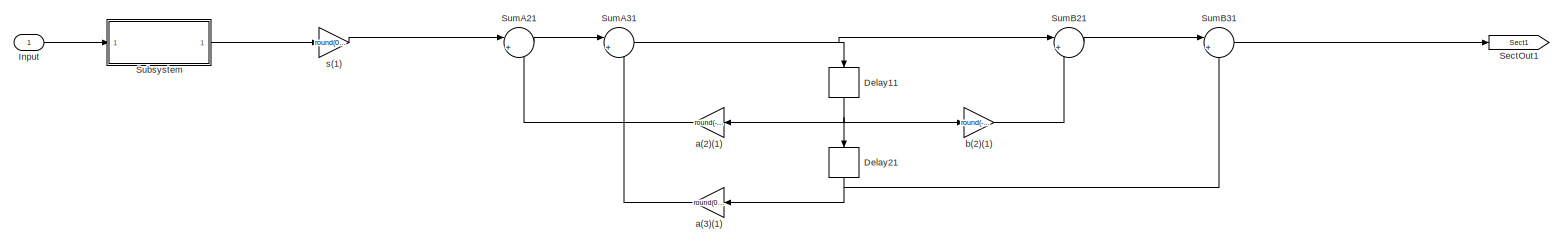
[diagram: Filter5 - part 1/3, left side, full height]
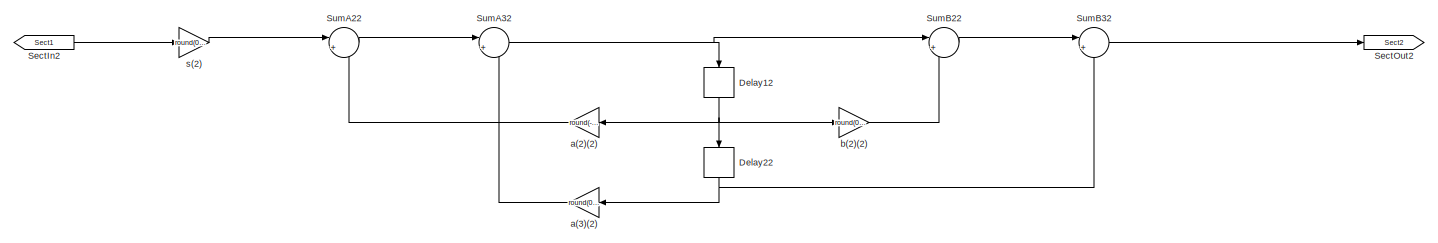
[diagram: Filter5 - part 2/3, center side, full height]
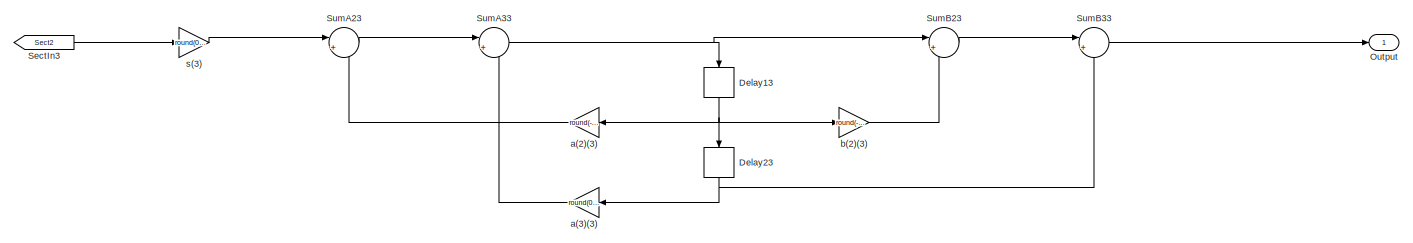
[diagram: Filter5 - part 3/3, right side, full height]
BLOCK [SubSystem] Filter5
  ErrorFcn = dspFilterRealizedInBasicElemsAlgLoopErrFcnCallback
  Ports = [1, 1]
  RequestExecContextInheritance = off
  Tag = FilterWizardSubSystem
  UserDataPersistent = on
  Variant = off
BLOCK [Delay] Filter5/Delay11
  DelayLength = 1
  InitialCondition = 0
  InputPortMap = u0
  Ports = [1, 1]
BLOCK [Delay] Filter5/Delay12
  DelayLength = 1
  InitialCondition = 0
  InputPortMap = u0
  Ports = [1, 1]
BLOCK [Delay] Filter5/Delay13
  DelayLength = 1
  InitialCondition = 0
  InputPortMap = u0
  Ports = [1, 1]
BLOCK [Delay] Filter5/Delay21
  DelayLength = 1
  InitialCondition = 0
  InputPortMap = u0
  Ports = [1, 1]
BLOCK [Delay] Filter5/Delay22
  DelayLength = 1
  InitialCondition = 0
  InputPortMap = u0
  Ports = [1, 1]
BLOCK [Delay] Filter5/Delay23
  DelayLength = 1
  InitialCondition = 0
  InputPortMap = u0
  Ports = [1, 1]
BLOCK [Inport] Filter5/Input
  IconDisplay = Port number
BLOCK [Outport] Filter5/Output
  IconDisplay = Port number
BLOCK [From] Filter5/SectIn2
  GotoTag = Sect1
BLOCK [From] Filter5/SectIn3
  GotoTag = Sect2
BLOCK [Goto] Filter5/SectOut1
  GotoTag = Sect1
BLOCK [Goto] Filter5/SectOut2
  GotoTag = Sect2
BLOCK [SubSystem] Filter5/Subsystem
  Ports = [1, 1]
  RequestExecContextInheritance = off
  Variant = off
BLOCK [Gain] Filter5/Subsystem/Gain
  Gain = 2^(k-1)
  OutDataTypeStr = Inherit: Inherit via internal rule
  ParamDataTypeStr = Inherit: Inherit via internal rule
  SaturateOnIntegerOverflow = off
BLOCK [Gain] Filter5/Subsystem/Gain1
  Gain = 1/(2^(k-1))
  OutDataTypeStr = Inherit: Inherit via internal rule
  ParamDataTypeStr = Inherit: Inherit via internal rule
  SaturateOnIntegerOverflow = off
BLOCK [Inport] Filter5/Subsystem/In1
  IconDisplay = Port number
BLOCK [Outport] Filter5/Subsystem/Out1
  IconDisplay = Port number
BLOCK [Rounding] Filter5/Subsystem/Round
  Operator = round
BLOCK [Saturate] Filter5/Subsystem/Saturation
  InputPortMap = u0
  LowerLimit = -2^(k+s-1)
  Ports = [1, 1]
  UpperLimit = 2^(k+s+-1)-1
BLOCK [Sum] Filter5/SumA21
  IconShape = round
  InputSameDT = off
  Inputs = |+-
  Ports = [2, 1]
  RndMeth = Nearest
BLOCK [Sum] Filter5/SumA22
  IconShape = round
  InputSameDT = off
  Inputs = |+-
  Ports = [2, 1]
  RndMeth = Nearest
BLOCK [Sum] Filter5/SumA23
  IconShape = round
  InputSameDT = off
  Inputs = |+-
  Ports = [2, 1]
  RndMeth = Nearest
BLOCK [Sum] Filter5/SumA31
  IconShape = round
  InputSameDT = off
  Inputs = |+-
  Ports = [2, 1]
  RndMeth = Nearest
BLOCK [Sum] Filter5/SumA32
  IconShape = round
  InputSameDT = off
  Inputs = |+-
  Ports = [2, 1]
  RndMeth = Nearest
BLOCK [Sum] Filter5/SumA33
  IconShape = round
  InputSameDT = off
  Inputs = |+-
  Ports = [2, 1]
  RndMeth = Nearest
BLOCK [Sum] Filter5/SumB21
  IconShape = round
  InputSameDT = off
  Inputs = |++
  Ports = [2, 1]
  RndMeth = Nearest
BLOCK [Sum] Filter5/SumB22
  IconShape = round
  InputSameDT = off
  Inputs = |++
  Ports = [2, 1]
  RndMeth = Nearest
BLOCK [Sum] Filter5/SumB23
  IconShape = round
  InputSameDT = off
  Inputs = |++
  Ports = [2, 1]
  RndMeth = Nearest
BLOCK [Sum] Filter5/SumB31
  IconShape = round
  InputSameDT = off
  Inputs = |++
  Ports = [2, 1]
  RndMeth = Nearest
BLOCK [Sum] Filter5/SumB32
  IconShape = round
  InputSameDT = off
  Inputs = |++
  Ports = [2, 1]
  RndMeth = Nearest
BLOCK [Sum] Filter5/SumB33
  IconShape = round
  InputSameDT = off
  Inputs = |++
  Ports = [2, 1]
  RndMeth = Nearest
BLOCK [Gain] Filter5/a(2)(1)
  Gain = round(-1.72237599432170896*2^(ck-1))/(2^(ck-1))
  ParamDataTypeStr = double
  RndMeth = Nearest
BLOCK [Gain] Filter5/a(2)(2)
  Gain = round(-1.72705256097480264*2^(ck-1))/(2^(ck-1))
  ParamDataTypeStr = double
  RndMeth = Nearest
BLOCK [Gain] Filter5/a(2)(3)
  Gain = round(-1.73755518539052489*2^(ck-1))/(2^(ck-1))
  ParamDataTypeStr = double
  RndMeth = Nearest
BLOCK [Gain] Filter5/a(3)(1)
  Gain = round(0.868608295135569031*2^(ck-1))/(2^(ck-1))
  ParamDataTypeStr = double
  RndMeth = Nearest
BLOCK [Gain] Filter5/a(3)(2)
  Gain = round(0.76575272159101615*2^(ck-1))/(2^(ck-1))
  ParamDataTypeStr = double
  RndMeth = Nearest
BLOCK [Gain] Filter5/a(3)(3)
  Gain = round(0.962513882588003633*2^(ck-1))/(2^(ck-1))
  ParamDataTypeStr = double
  RndMeth = Nearest
BLOCK [Gain] Filter5/b(2)(1)
  Gain = round(-1.37905756840912064*2^(ck-1))/(2^(ck-1))
  ParamDataTypeStr = double
  RndMeth = Nearest
BLOCK [Gain] Filter5/b(2)(2)
  Gain = round(0.142312974670270875*2^(ck-1))/(2^(ck-1))
  ParamDataTypeStr = double
  RndMeth = Nearest
BLOCK [Gain] Filter5/b(2)(3)
  Gain = round(-1.58625205435101768*2^(ck-1))/(2^(ck-1))
  ParamDataTypeStr = double
  RndMeth = Nearest
BLOCK [Gain] Filter5/s(1)
  Gain = round(0.499132479456427858*2^(ck-1))/(2^(ck-1))
  ParamDataTypeStr = double
  RndMeth = Nearest
BLOCK [Gain] Filter5/s(2)
  Gain = round(0.416654319236726134*2^(ck-1))/(2^(ck-1))
  ParamDataTypeStr = double
  RndMeth = Nearest
BLOCK [Gain] Filter5/s(3)
  Gain = round(0.00991281595558810534*2^(ck-1))/(2^(ck-1))
  ParamDataTypeStr = double
  RndMeth = Nearest
BLOCK [FromFile] From File1
  FileName = data.mat
  SampleTime = 1/44100
BLOCK [FromFile] From File2
  FileName = data.mat
  SampleTime = 1/44100
BLOCK [Gain] Gain
  Gain = 1024
  OutDataTypeStr = Inherit: Inherit via internal rule
  ParamDataTypeStr = Inherit: Inherit via internal rule
  SaturateOnIntegerOverflow = off
BLOCK [Gain] Gain1
  Gain = 1024
  OutDataTypeStr = Inherit: Inherit via internal rule
  ParamDataTypeStr = Inherit: Inherit via internal rule
  SaturateOnIntegerOverflow = off
BLOCK [Reference] Integer to Bit Converter  REF=commutil2/Integer to Bit
Converter
  Ports = [1, 1]
  SourceBlock = commutil2/Integer to Bit\nConverter
  SourceProductBaseCode = CM
  SourceProductName = Communications System Toolbox
  SourceType = Integer to Bit Converter
BLOCK [Reference] Integer to Bit Converter1  REF=commutil2/Integer to Bit
Converter
  Ports = [1, 1]
  SourceBlock = commutil2/Integer to Bit\nConverter
  SourceProductBaseCode = CM
  SourceProductName = Communications System Toolbox
  SourceType = Integer to Bit Converter
BLOCK [Mux] Mux
  DisplayOption = bar
  Inputs = 2
  Ports = [2, 1]
BLOCK [Reference] RMS1  REF=dspstat3/RMS
  Ports = [1, 1]
  SourceBlock = dspstat3/RMS
  SourceProductBaseCode = DS
  SourceProductName = DSP System Toolbox
  SourceType = RMS
  UserDataPersistent = on
BLOCK [Reference] RMS2  REF=dspstat3/RMS
  Ports = [1, 1]
  SourceBlock = dspstat3/RMS
  SourceProductBaseCode = DS
  SourceProductName = DSP System Toolbox
  SourceType = RMS
  UserDataPersistent = on
BLOCK [Reference] RMS3  REF=dspstat3/RMS
  Ports = [1, 1]
  SourceBlock = dspstat3/RMS
  SourceProductBaseCode = DS
  SourceProductName = DSP System Toolbox
  SourceType = RMS
  UserDataPersistent = on
BLOCK [Reference] RMS4  REF=dspstat3/RMS
  Ports = [1, 1]
  SourceBlock = dspstat3/RMS
  SourceProductBaseCode = DS
  SourceProductName = DSP System Toolbox
  SourceType = RMS
  UserDataPersistent = on
BLOCK [SpectrumAnalyzer] Spectrum Analyzer
  NumInputPorts = 1
  Ports = [1]
  ScopeSpecificationString = spbscopes.SpectrumAnalyzerBlockCfg('CurrentConfiguration', extmgr.ConfigurationSet(extmgr.Configuration('Core','General UI',true),extmgr.Configuration('Core','Source UI',true),extmgr.Configuration('Sources','WiredSimulink',true),extmgr.Configuration('Visuals','Spectrum',true,'AxesProperties',struct('Color',{[0 0 0],[0 0 0]},'XColor',{[0.686274509803922 0.686274509803922 0.686274509803922],[0.68627...<+1983ch>
BLOCK [SubSystem] Subsystem
  Ports = [1, 1]
  RequestExecContextInheritance = off
  Variant = off
BLOCK [Gain] Subsystem/Gain
  Gain = 2^(k-1)
  OutDataTypeStr = Inherit: Inherit via internal rule
  ParamDataTypeStr = Inherit: Inherit via internal rule
  SaturateOnIntegerOverflow = off
BLOCK [Gain] Subsystem/Gain1
  Gain = 1/(2^(k-1))
  OutDataTypeStr = Inherit: Inherit via internal rule
  ParamDataTypeStr = Inherit: Inherit via internal rule
  SaturateOnIntegerOverflow = off
BLOCK [Inport] Subsystem/In1
  IconDisplay = Port number
BLOCK [Outport] Subsystem/Out1
  IconDisplay = Port number
BLOCK [Rounding] Subsystem/Round
  Operator = round
BLOCK [Saturate] Subsystem/Saturation
  InputPortMap = u0
  LowerLimit = -2^(k+s-1)
  Ports = [1, 1]
  UpperLimit = 2^(k+s+-1)-1
BLOCK [Sum] Subtract1
  InputSameDT = off
  Inputs = +-
  OutDataTypeStr = Inherit: Inherit via internal rule
  Ports = [2, 1]
  SaturateOnIntegerOverflow = off
BLOCK [Sum] Subtract2
  InputSameDT = off
  Inputs = +-
  OutDataTypeStr = Inherit: Inherit via internal rule
  Ports = [2, 1]
  SaturateOnIntegerOverflow = off
BLOCK [ToWorkspace] To Workspace
  FixptAsFi = on
  MaxDataPoints = inf
  Ports = [1]
  SampleTime = -1
  Save2DSignal = 3-D array (concatenate along third dimension)
  SaveFormat = Timeseries
  VariableName = simout
BLOCK [ToWorkspace] To Workspace1
  FixptAsFi = on
  MaxDataPoints = inf
  Ports = [1]
  SampleTime = -1
  Save2DSignal = 3-D array (concatenate along third dimension)
  SaveFormat = Timeseries
  VariableName = simout1
BLOCK [ToWorkspace] To Workspace2
  FixptAsFi = on
  MaxDataPoints = inf
  Ports = [1]
  SampleTime = -1
  Save2DSignal = 2-D array (concatenate along first dimension)
  SaveFormat = Timeseries
  VariableName = simout2
BLOCK [ToWorkspace] To Workspace3
  FixptAsFi = on
  MaxDataPoints = inf
  Ports = [1]
  SampleTime = -1
  Save2DSignal = 2-D array (concatenate along first dimension)
  SaveFormat = Timeseries
  VariableName = simout3
NET Band-Limited White Noise:1 -> Filter1:1, Filter:1
LINE Buffer1:1 -> RMS3:1
LINE Buffer2:1 -> RMS1:1
LINE Buffer3:1 -> RMS4:1
LINE Buffer:1 -> RMS2:1
LINE Divide1:1 -> Fcn1:1
LINE Divide2:1 -> Fcn2:1
LINE Fcn1:1 -> Display1:1
LINE Fcn2:1 -> Display2:1
NET Filter/Delay11:1 -> Filter/Delay21:1, Filter/a(2)(1):1, Filter/b(2)(1):1
NET Filter/Delay12:1 -> Filter/Delay22:1, Filter/a(2)(2):1, Filter/b(2)(2):1
NET Filter/Delay13:1 -> Filter/Delay23:1, Filter/a(2)(3):1, Filter/b(2)(3):1
NET Filter/Delay21:1 -> Filter/SumB31:2, Filter/a(3)(1):1
NET Filter/Delay22:1 -> Filter/SumB32:2, Filter/a(3)(2):1
NET Filter/Delay23:1 -> Filter/SumB33:2, Filter/a(3)(3):1
LINE Filter/Input:1 -> Filter/s(1):1
LINE Filter/SectIn2:1 -> Filter/s(2):1
LINE Filter/SectIn3:1 -> Filter/s(3):1
LINE Filter/SumA21:1 -> Filter/SumA31:1
LINE Filter/SumA22:1 -> Filter/SumA32:1
LINE Filter/SumA23:1 -> Filter/SumA33:1
NET Filter/SumA31:1 -> Filter/Delay11:1, Filter/SumB21:1
NET Filter/SumA32:1 -> Filter/Delay12:1, Filter/SumB22:1
NET Filter/SumA33:1 -> Filter/Delay13:1, Filter/SumB23:1
LINE Filter/SumB21:1 -> Filter/SumB31:1
LINE Filter/SumB22:1 -> Filter/SumB32:1
LINE Filter/SumB23:1 -> Filter/SumB33:1
LINE Filter/SumB31:1 -> Filter/SectOut1:1
LINE Filter/SumB32:1 -> Filter/SectOut2:1
LINE Filter/SumB33:1 -> Filter/Output:1
LINE Filter/a(2)(1):1 -> Filter/SumA21:2
LINE Filter/a(2)(2):1 -> Filter/SumA22:2
LINE Filter/a(2)(3):1 -> Filter/SumA23:2
LINE Filter/a(3)(1):1 -> Filter/SumA31:2
LINE Filter/a(3)(2):1 -> Filter/SumA32:2
LINE Filter/a(3)(3):1 -> Filter/SumA33:2
LINE Filter/b(2)(1):1 -> Filter/SumB21:2
LINE Filter/b(2)(2):1 -> Filter/SumB22:2
LINE Filter/b(2)(3):1 -> Filter/SumB23:2
LINE Filter/s(1):1 -> Filter/SumA21:1
LINE Filter/s(2):1 -> Filter/SumA22:1
LINE Filter/s(3):1 -> Filter/SumA23:1
NET Filter1/Delay11:1 -> Filter1/Delay21:1, Filter1/a(2)(1):1, Filter1/b(2)(1):1
NET Filter1/Delay12:1 -> Filter1/Delay22:1, Filter1/a(2)(2):1, Filter1/b(2)(2):1
NET Filter1/Delay13:1 -> Filter1/Delay23:1, Filter1/a(2)(3):1, Filter1/b(2)(3):1
NET Filter1/Delay21:1 -> Filter1/SumB31:2, Filter1/a(3)(1):1
NET Filter1/Delay22:1 -> Filter1/SumB32:2, Filter1/a(3)(2):1
NET Filter1/Delay23:1 -> Filter1/SumB33:2, Filter1/a(3)(3):1
LINE Filter1/Input:1 -> Filter1/s(1):1
LINE Filter1/SectIn2:1 -> Filter1/s(2):1
LINE Filter1/SectIn3:1 -> Filter1/s(3):1
LINE Filter1/SumA21:1 -> Filter1/SumA31:1
LINE Filter1/SumA22:1 -> Filter1/SumA32:1
LINE Filter1/SumA23:1 -> Filter1/SumA33:1
NET Filter1/SumA31:1 -> Filter1/Delay11:1, Filter1/SumB21:1
NET Filter1/SumA32:1 -> Filter1/Delay12:1, Filter1/SumB22:1
NET Filter1/SumA33:1 -> Filter1/Delay13:1, Filter1/SumB23:1
LINE Filter1/SumB21:1 -> Filter1/SumB31:1
LINE Filter1/SumB22:1 -> Filter1/SumB32:1
LINE Filter1/SumB23:1 -> Filter1/SumB33:1
LINE Filter1/SumB31:1 -> Filter1/SectOut1:1
LINE Filter1/SumB32:1 -> Filter1/SectOut2:1
LINE Filter1/SumB33:1 -> Filter1/Output:1
LINE Filter1/a(2)(1):1 -> Filter1/SumA21:2
LINE Filter1/a(2)(2):1 -> Filter1/SumA22:2
LINE Filter1/a(2)(3):1 -> Filter1/SumA23:2
LINE Filter1/a(3)(1):1 -> Filter1/SumA31:2
LINE Filter1/a(3)(2):1 -> Filter1/SumA32:2
LINE Filter1/a(3)(3):1 -> Filter1/SumA33:2
LINE Filter1/b(2)(1):1 -> Filter1/SumB21:2
LINE Filter1/b(2)(2):1 -> Filter1/SumB22:2
LINE Filter1/b(2)(3):1 -> Filter1/SumB23:2
LINE Filter1/s(1):1 -> Filter1/SumA21:1
LINE Filter1/s(2):1 -> Filter1/SumA22:1
LINE Filter1/s(3):1 -> Filter1/SumA23:1
LINE Filter1:1 -> Mux:2
NET Filter2/Delay11:1 -> Filter2/Delay21:1, Filter2/a(2)(1):1, Filter2/b(2)(1):1
NET Filter2/Delay12:1 -> Filter2/Delay22:1, Filter2/a(2)(2):1, Filter2/b(2)(2):1
NET Filter2/Delay13:1 -> Filter2/Delay23:1, Filter2/a(2)(3):1, Filter2/b(2)(3):1
NET Filter2/Delay21:1 -> Filter2/SumB31:2, Filter2/a(3)(1):1
NET Filter2/Delay22:1 -> Filter2/SumB32:2, Filter2/a(3)(2):1
NET Filter2/Delay23:1 -> Filter2/SumB33:2, Filter2/a(3)(3):1
LINE Filter2/Input:1 -> Filter2/s(1):1
LINE Filter2/SectIn2:1 -> Filter2/s(2):1
LINE Filter2/SectIn3:1 -> Filter2/s(3):1
LINE Filter2/SumA21:1 -> Filter2/SumA31:1
LINE Filter2/SumA22:1 -> Filter2/SumA32:1
LINE Filter2/SumA23:1 -> Filter2/SumA33:1
NET Filter2/SumA31:1 -> Filter2/Delay11:1, Filter2/SumB21:1
NET Filter2/SumA32:1 -> Filter2/Delay12:1, Filter2/SumB22:1
NET Filter2/SumA33:1 -> Filter2/Delay13:1, Filter2/SumB23:1
LINE Filter2/SumB21:1 -> Filter2/SumB31:1
LINE Filter2/SumB22:1 -> Filter2/SumB32:1
LINE Filter2/SumB23:1 -> Filter2/SumB33:1
LINE Filter2/SumB31:1 -> Filter2/SectOut1:1
LINE Filter2/SumB32:1 -> Filter2/SectOut2:1
LINE Filter2/SumB33:1 -> Filter2/Output:1
LINE Filter2/a(2)(1):1 -> Filter2/SumA21:2
LINE Filter2/a(2)(2):1 -> Filter2/SumA22:2
LINE Filter2/a(2)(3):1 -> Filter2/SumA23:2
LINE Filter2/a(3)(1):1 -> Filter2/SumA31:2
LINE Filter2/a(3)(2):1 -> Filter2/SumA32:2
LINE Filter2/a(3)(3):1 -> Filter2/SumA33:2
LINE Filter2/b(2)(1):1 -> Filter2/SumB21:2
LINE Filter2/b(2)(2):1 -> Filter2/SumB22:2
LINE Filter2/b(2)(3):1 -> Filter2/SumB23:2
LINE Filter2/s(1):1 -> Filter2/SumA21:1
LINE Filter2/s(2):1 -> Filter2/SumA22:1
LINE Filter2/s(3):1 -> Filter2/SumA23:1
NET Filter2:1 -> Buffer2:1, Subtract2:1
NET Filter3/Delay11:1 -> Filter3/Delay21:1, Filter3/Subsystem3:1, Filter3/Subsystem4:1
NET Filter3/Delay12:1 -> Filter3/Delay22:1, Filter3/Subsystem10:1, Filter3/Subsystem13:1
NET Filter3/Delay13:1 -> Filter3/Delay23:1, Filter3/Subsystem18:1, Filter3/Subsystem21:1
NET Filter3/Delay21:1 -> Filter3/Subsystem7:1, Filter3/SumB31:2
NET Filter3/Delay22:1 -> Filter3/Subsystem14:1, Filter3/SumB32:2
NET Filter3/Delay23:1 -> Filter3/Subsystem22:1, Filter3/SumB33:2
LINE Filter3/Input:1 -> Filter3/Subsystem:1
LINE Filter3/SectIn2:1 -> Filter3/Subsystem6:1
LINE Filter3/SectIn3:1 -> Filter3/Subsystem17:1
LINE Filter3/Subsystem/Gain1:1 -> Filter3/Subsystem/Out1:1
LINE Filter3/Subsystem/Gain:1 -> Filter3/Subsystem/Round:1
LINE Filter3/Subsystem/In1:1 -> Filter3/Subsystem/Gain:1
LINE Filter3/Subsystem/Round:1 -> Filter3/Subsystem/Saturation:1
LINE Filter3/Subsystem/Saturation:1 -> Filter3/Subsystem/Gain1:1
LINE Filter3/Subsystem1/Gain1:1 -> Filter3/Subsystem1/Out1:1
LINE Filter3/Subsystem1/Gain:1 -> Filter3/Subsystem1/Round:1
LINE Filter3/Subsystem1/In1:1 -> Filter3/Subsystem1/Gain:1
LINE Filter3/Subsystem1/Round:1 -> Filter3/Subsystem1/Saturation:1
LINE Filter3/Subsystem1/Saturation:1 -> Filter3/Subsystem1/Gain1:1
LINE Filter3/Subsystem10/Gain1:1 -> Filter3/Subsystem10/Out1:1
LINE Filter3/Subsystem10/Gain:1 -> Filter3/Subsystem10/Round:1
LINE Filter3/Subsystem10/In1:1 -> Filter3/Subsystem10/Gain:1
LINE Filter3/Subsystem10/Round:1 -> Filter3/Subsystem10/Saturation:1
LINE Filter3/Subsystem10/Saturation:1 -> Filter3/Subsystem10/Gain1:1
LINE Filter3/Subsystem10:1 -> Filter3/b(2)(2):1
LINE Filter3/Subsystem11/Gain1:1 -> Filter3/Subsystem11/Out1:1
LINE Filter3/Subsystem11/Gain:1 -> Filter3/Subsystem11/Round:1
LINE Filter3/Subsystem11/In1:1 -> Filter3/Subsystem11/Gain:1
LINE Filter3/Subsystem11/Round:1 -> Filter3/Subsystem11/Saturation:1
LINE Filter3/Subsystem11/Saturation:1 -> Filter3/Subsystem11/Gain1:1
LINE Filter3/Subsystem11:1 -> Filter3/SumA22:1
LINE Filter3/Subsystem12/Gain1:1 -> Filter3/Subsystem12/Out1:1
LINE Filter3/Subsystem12/Gain:1 -> Filter3/Subsystem12/Round:1
LINE Filter3/Subsystem12/In1:1 -> Filter3/Subsystem12/Gain:1
LINE Filter3/Subsystem12/Round:1 -> Filter3/Subsystem12/Saturation:1
LINE Filter3/Subsystem12/Saturation:1 -> Filter3/Subsystem12/Gain1:1
LINE Filter3/Subsystem12:1 -> Filter3/SumA22:2
LINE Filter3/Subsystem13/Gain1:1 -> Filter3/Subsystem13/Out1:1
LINE Filter3/Subsystem13/Gain:1 -> Filter3/Subsystem13/Round:1
LINE Filter3/Subsystem13/In1:1 -> Filter3/Subsystem13/Gain:1
LINE Filter3/Subsystem13/Round:1 -> Filter3/Subsystem13/Saturation:1
LINE Filter3/Subsystem13/Saturation:1 -> Filter3/Subsystem13/Gain1:1
LINE Filter3/Subsystem13:1 -> Filter3/a(2)(2):1
LINE Filter3/Subsystem14/Gain1:1 -> Filter3/Subsystem14/Out1:1
LINE Filter3/Subsystem14/Gain:1 -> Filter3/Subsystem14/Round:1
LINE Filter3/Subsystem14/In1:1 -> Filter3/Subsystem14/Gain:1
LINE Filter3/Subsystem14/Round:1 -> Filter3/Subsystem14/Saturation:1
LINE Filter3/Subsystem14/Saturation:1 -> Filter3/Subsystem14/Gain1:1
LINE Filter3/Subsystem14:1 -> Filter3/a(3)(2):1
LINE Filter3/Subsystem15/Gain1:1 -> Filter3/Subsystem15/Out1:1
LINE Filter3/Subsystem15/Gain:1 -> Filter3/Subsystem15/Round:1
LINE Filter3/Subsystem15/In1:1 -> Filter3/Subsystem15/Gain:1
LINE Filter3/Subsystem15/Round:1 -> Filter3/Subsystem15/Saturation:1
LINE Filter3/Subsystem15/Saturation:1 -> Filter3/Subsystem15/Gain1:1
LINE Filter3/Subsystem15:1 -> Filter3/SumA32:2
LINE Filter3/Subsystem16/Gain1:1 -> Filter3/Subsystem16/Out1:1
LINE Filter3/Subsystem16/Gain:1 -> Filter3/Subsystem16/Round:1
LINE Filter3/Subsystem16/In1:1 -> Filter3/Subsystem16/Gain:1
LINE Filter3/Subsystem16/Round:1 -> Filter3/Subsystem16/Saturation:1
LINE Filter3/Subsystem16/Saturation:1 -> Filter3/Subsystem16/Gain1:1
LINE Filter3/Subsystem16:1 -> Filter3/SumA23:1
LINE Filter3/Subsystem17/Gain1:1 -> Filter3/Subsystem17/Out1:1
LINE Filter3/Subsystem17/Gain:1 -> Filter3/Subsystem17/Round:1
LINE Filter3/Subsystem17/In1:1 -> Filter3/Subsystem17/Gain:1
LINE Filter3/Subsystem17/Round:1 -> Filter3/Subsystem17/Saturation:1
LINE Filter3/Subsystem17/Saturation:1 -> Filter3/Subsystem17/Gain1:1
LINE Filter3/Subsystem17:1 -> Filter3/s(3):1
LINE Filter3/Subsystem18/Gain1:1 -> Filter3/Subsystem18/Out1:1
LINE Filter3/Subsystem18/Gain:1 -> Filter3/Subsystem18/Round:1
LINE Filter3/Subsystem18/In1:1 -> Filter3/Subsystem18/Gain:1
LINE Filter3/Subsystem18/Round:1 -> Filter3/Subsystem18/Saturation:1
LINE Filter3/Subsystem18/Saturation:1 -> Filter3/Subsystem18/Gain1:1
LINE Filter3/Subsystem18:1 -> Filter3/b(2)(3):1
LINE Filter3/Subsystem19/Gain1:1 -> Filter3/Subsystem19/Out1:1
LINE Filter3/Subsystem19/Gain:1 -> Filter3/Subsystem19/Round:1
LINE Filter3/Subsystem19/In1:1 -> Filter3/Subsystem19/Gain:1
LINE Filter3/Subsystem19/Round:1 -> Filter3/Subsystem19/Saturation:1
LINE Filter3/Subsystem19/Saturation:1 -> Filter3/Subsystem19/Gain1:1
LINE Filter3/Subsystem19:1 -> Filter3/SumB23:2
LINE Filter3/Subsystem1:1 -> Filter3/SumA21:2
LINE Filter3/Subsystem2/Gain1:1 -> Filter3/Subsystem2/Out1:1
LINE Filter3/Subsystem2/Gain:1 -> Filter3/Subsystem2/Round:1
LINE Filter3/Subsystem2/In1:1 -> Filter3/Subsystem2/Gain:1
LINE Filter3/Subsystem2/Round:1 -> Filter3/Subsystem2/Saturation:1
LINE Filter3/Subsystem2/Saturation:1 -> Filter3/Subsystem2/Gain1:1
LINE Filter3/Subsystem20/Gain1:1 -> Filter3/Subsystem20/Out1:1
LINE Filter3/Subsystem20/Gain:1 -> Filter3/Subsystem20/Round:1
LINE Filter3/Subsystem20/In1:1 -> Filter3/Subsystem20/Gain:1
LINE Filter3/Subsystem20/Round:1 -> Filter3/Subsystem20/Saturation:1
LINE Filter3/Subsystem20/Saturation:1 -> Filter3/Subsystem20/Gain1:1
LINE Filter3/Subsystem20:1 -> Filter3/SumA23:2
LINE Filter3/Subsystem21/Gain1:1 -> Filter3/Subsystem21/Out1:1
LINE Filter3/Subsystem21/Gain:1 -> Filter3/Subsystem21/Round:1
LINE Filter3/Subsystem21/In1:1 -> Filter3/Subsystem21/Gain:1
LINE Filter3/Subsystem21/Round:1 -> Filter3/Subsystem21/Saturation:1
LINE Filter3/Subsystem21/Saturation:1 -> Filter3/Subsystem21/Gain1:1
LINE Filter3/Subsystem21:1 -> Filter3/a(2)(3):1
LINE Filter3/Subsystem22/Gain1:1 -> Filter3/Subsystem22/Out1:1
LINE Filter3/Subsystem22/Gain:1 -> Filter3/Subsystem22/Round:1
LINE Filter3/Subsystem22/In1:1 -> Filter3/Subsystem22/Gain:1
LINE Filter3/Subsystem22/Round:1 -> Filter3/Subsystem22/Saturation:1
LINE Filter3/Subsystem22/Saturation:1 -> Filter3/Subsystem22/Gain1:1
LINE Filter3/Subsystem22:1 -> Filter3/a(3)(3):1
LINE Filter3/Subsystem23/Gain1:1 -> Filter3/Subsystem23/Out1:1
LINE Filter3/Subsystem23/Gain:1 -> Filter3/Subsystem23/Round:1
LINE Filter3/Subsystem23/In1:1 -> Filter3/Subsystem23/Gain:1
LINE Filter3/Subsystem23/Round:1 -> Filter3/Subsystem23/Saturation:1
LINE Filter3/Subsystem23/Saturation:1 -> Filter3/Subsystem23/Gain1:1
LINE Filter3/Subsystem23:1 -> Filter3/SumA33:2
LINE Filter3/Subsystem2:1 -> Filter3/SumA31:2
LINE Filter3/Subsystem3/Gain1:1 -> Filter3/Subsystem3/Out1:1
LINE Filter3/Subsystem3/Gain:1 -> Filter3/Subsystem3/Round:1
LINE Filter3/Subsystem3/In1:1 -> Filter3/Subsystem3/Gain:1
LINE Filter3/Subsystem3/Round:1 -> Filter3/Subsystem3/Saturation:1
LINE Filter3/Subsystem3/Saturation:1 -> Filter3/Subsystem3/Gain1:1
LINE Filter3/Subsystem3:1 -> Filter3/a(2)(1):1
LINE Filter3/Subsystem4/Gain1:1 -> Filter3/Subsystem4/Out1:1
LINE Filter3/Subsystem4/Gain:1 -> Filter3/Subsystem4/Round:1
LINE Filter3/Subsystem4/In1:1 -> Filter3/Subsystem4/Gain:1
LINE Filter3/Subsystem4/Round:1 -> Filter3/Subsystem4/Saturation:1
LINE Filter3/Subsystem4/Saturation:1 -> Filter3/Subsystem4/Gain1:1
LINE Filter3/Subsystem4:1 -> Filter3/b(2)(1):1
LINE Filter3/Subsystem5/Gain1:1 -> Filter3/Subsystem5/Out1:1
LINE Filter3/Subsystem5/Gain:1 -> Filter3/Subsystem5/Round:1
LINE Filter3/Subsystem5/In1:1 -> Filter3/Subsystem5/Gain:1
LINE Filter3/Subsystem5/Round:1 -> Filter3/Subsystem5/Saturation:1
LINE Filter3/Subsystem5/Saturation:1 -> Filter3/Subsystem5/Gain1:1
LINE Filter3/Subsystem5:1 -> Filter3/SumB21:2
LINE Filter3/Subsystem6/Gain1:1 -> Filter3/Subsystem6/Out1:1
LINE Filter3/Subsystem6/Gain:1 -> Filter3/Subsystem6/Round:1
LINE Filter3/Subsystem6/In1:1 -> Filter3/Subsystem6/Gain:1
LINE Filter3/Subsystem6/Round:1 -> Filter3/Subsystem6/Saturation:1
LINE Filter3/Subsystem6/Saturation:1 -> Filter3/Subsystem6/Gain1:1
LINE Filter3/Subsystem6:1 -> Filter3/s(2):1
LINE Filter3/Subsystem7/Gain1:1 -> Filter3/Subsystem7/Out1:1
LINE Filter3/Subsystem7/Gain:1 -> Filter3/Subsystem7/Round:1
LINE Filter3/Subsystem7/In1:1 -> Filter3/Subsystem7/Gain:1
LINE Filter3/Subsystem7/Round:1 -> Filter3/Subsystem7/Saturation:1
LINE Filter3/Subsystem7/Saturation:1 -> Filter3/Subsystem7/Gain1:1
LINE Filter3/Subsystem7:1 -> Filter3/a(3)(1):1
LINE Filter3/Subsystem8/Gain1:1 -> Filter3/Subsystem8/Out1:1
LINE Filter3/Subsystem8/Gain:1 -> Filter3/Subsystem8/Round:1
LINE Filter3/Subsystem8/In1:1 -> Filter3/Subsystem8/Gain:1
LINE Filter3/Subsystem8/Round:1 -> Filter3/Subsystem8/Saturation:1
LINE Filter3/Subsystem8/Saturation:1 -> Filter3/Subsystem8/Gain1:1
LINE Filter3/Subsystem8:1 -> Filter3/SumA21:1
LINE Filter3/Subsystem9/Gain1:1 -> Filter3/Subsystem9/Out1:1
LINE Filter3/Subsystem9/Gain:1 -> Filter3/Subsystem9/Round:1
LINE Filter3/Subsystem9/In1:1 -> Filter3/Subsystem9/Gain:1
LINE Filter3/Subsystem9/Round:1 -> Filter3/Subsystem9/Saturation:1
LINE Filter3/Subsystem9/Saturation:1 -> Filter3/Subsystem9/Gain1:1
LINE Filter3/Subsystem9:1 -> Filter3/SumB22:2
LINE Filter3/Subsystem:1 -> Filter3/s(1):1
LINE Filter3/SumA21:1 -> Filter3/SumA31:1
LINE Filter3/SumA22:1 -> Filter3/SumA32:1
LINE Filter3/SumA23:1 -> Filter3/SumA33:1
NET Filter3/SumA31:1 -> Filter3/Delay11:1, Filter3/SumB21:1
NET Filter3/SumA32:1 -> Filter3/Delay12:1, Filter3/SumB22:1
NET Filter3/SumA33:1 -> Filter3/Delay13:1, Filter3/SumB23:1
LINE Filter3/SumB21:1 -> Filter3/SumB31:1
LINE Filter3/SumB22:1 -> Filter3/SumB32:1
LINE Filter3/SumB23:1 -> Filter3/SumB33:1
LINE Filter3/SumB31:1 -> Filter3/SectOut1:1
LINE Filter3/SumB32:1 -> Filter3/SectOut2:1
LINE Filter3/SumB33:1 -> Filter3/Output:1
LINE Filter3/a(2)(1):1 -> Filter3/Subsystem1:1
LINE Filter3/a(2)(2):1 -> Filter3/Subsystem12:1
LINE Filter3/a(2)(3):1 -> Filter3/Subsystem20:1
LINE Filter3/a(3)(1):1 -> Filter3/Subsystem2:1
LINE Filter3/a(3)(2):1 -> Filter3/Subsystem15:1
LINE Filter3/a(3)(3):1 -> Filter3/Subsystem23:1
LINE Filter3/b(2)(1):1 -> Filter3/Subsystem5:1
LINE Filter3/b(2)(2):1 -> Filter3/Subsystem9:1
LINE Filter3/b(2)(3):1 -> Filter3/Subsystem19:1
LINE Filter3/s(1):1 -> Filter3/Subsystem8:1
LINE Filter3/s(2):1 -> Filter3/Subsystem11:1
LINE Filter3/s(3):1 -> Filter3/Subsystem16:1
NET Filter3:1 -> Gain:1, Subtract2:2
NET Filter4/Delay11:1 -> Filter4/Delay21:1, Filter4/a(2)(1):1, Filter4/b(2)(1):1
NET Filter4/Delay12:1 -> Filter4/Delay22:1, Filter4/a(2)(2):1, Filter4/b(2)(2):1
NET Filter4/Delay13:1 -> Filter4/Delay23:1, Filter4/a(2)(3):1, Filter4/b(2)(3):1
NET Filter4/Delay21:1 -> Filter4/SumB31:2, Filter4/a(3)(1):1
NET Filter4/Delay22:1 -> Filter4/SumB32:2, Filter4/a(3)(2):1
NET Filter4/Delay23:1 -> Filter4/SumB33:2, Filter4/a(3)(3):1
LINE Filter4/Input:1 -> Filter4/s(1):1
LINE Filter4/SectIn2:1 -> Filter4/s(2):1
LINE Filter4/SectIn3:1 -> Filter4/s(3):1
LINE Filter4/SumA21:1 -> Filter4/SumA31:1
LINE Filter4/SumA22:1 -> Filter4/SumA32:1
LINE Filter4/SumA23:1 -> Filter4/SumA33:1
NET Filter4/SumA31:1 -> Filter4/Delay11:1, Filter4/SumB21:1
NET Filter4/SumA32:1 -> Filter4/Delay12:1, Filter4/SumB22:1
NET Filter4/SumA33:1 -> Filter4/Delay13:1, Filter4/SumB23:1
LINE Filter4/SumB21:1 -> Filter4/SumB31:1
LINE Filter4/SumB22:1 -> Filter4/SumB32:1
LINE Filter4/SumB23:1 -> Filter4/SumB33:1
LINE Filter4/SumB31:1 -> Filter4/SectOut1:1
LINE Filter4/SumB32:1 -> Filter4/SectOut2:1
LINE Filter4/SumB33:1 -> Filter4/Output:1
LINE Filter4/a(2)(1):1 -> Filter4/SumA21:2
LINE Filter4/a(2)(2):1 -> Filter4/SumA22:2
LINE Filter4/a(2)(3):1 -> Filter4/SumA23:2
LINE Filter4/a(3)(1):1 -> Filter4/SumA31:2
LINE Filter4/a(3)(2):1 -> Filter4/SumA32:2
LINE Filter4/a(3)(3):1 -> Filter4/SumA33:2
LINE Filter4/b(2)(1):1 -> Filter4/SumB21:2
LINE Filter4/b(2)(2):1 -> Filter4/SumB22:2
LINE Filter4/b(2)(3):1 -> Filter4/SumB23:2
LINE Filter4/s(1):1 -> Filter4/SumA21:1
LINE Filter4/s(2):1 -> Filter4/SumA22:1
LINE Filter4/s(3):1 -> Filter4/SumA23:1
NET Filter4:1 -> Buffer:1, Subtract1:1
NET Filter5/Delay11:1 -> Filter5/Delay21:1, Filter5/a(2)(1):1, Filter5/b(2)(1):1
NET Filter5/Delay12:1 -> Filter5/Delay22:1, Filter5/a(2)(2):1, Filter5/b(2)(2):1
NET Filter5/Delay13:1 -> Filter5/Delay23:1, Filter5/a(2)(3):1, Filter5/b(2)(3):1
NET Filter5/Delay21:1 -> Filter5/SumB31:2, Filter5/a(3)(1):1
NET Filter5/Delay22:1 -> Filter5/SumB32:2, Filter5/a(3)(2):1
NET Filter5/Delay23:1 -> Filter5/SumB33:2, Filter5/a(3)(3):1
LINE Filter5/Input:1 -> Filter5/Subsystem:1
LINE Filter5/SectIn2:1 -> Filter5/s(2):1
LINE Filter5/SectIn3:1 -> Filter5/s(3):1
LINE Filter5/Subsystem/Gain1:1 -> Filter5/Subsystem/Out1:1
LINE Filter5/Subsystem/Gain:1 -> Filter5/Subsystem/Round:1
LINE Filter5/Subsystem/In1:1 -> Filter5/Subsystem/Gain:1
LINE Filter5/Subsystem/Round:1 -> Filter5/Subsystem/Saturation:1
LINE Filter5/Subsystem/Saturation:1 -> Filter5/Subsystem/Gain1:1
LINE Filter5/Subsystem:1 -> Filter5/s(1):1
LINE Filter5/SumA21:1 -> Filter5/SumA31:1
LINE Filter5/SumA22:1 -> Filter5/SumA32:1
LINE Filter5/SumA23:1 -> Filter5/SumA33:1
NET Filter5/SumA31:1 -> Filter5/Delay11:1, Filter5/SumB21:1
NET Filter5/SumA32:1 -> Filter5/Delay12:1, Filter5/SumB22:1
NET Filter5/SumA33:1 -> Filter5/Delay13:1, Filter5/SumB23:1
LINE Filter5/SumB21:1 -> Filter5/SumB31:1
LINE Filter5/SumB22:1 -> Filter5/SumB32:1
LINE Filter5/SumB23:1 -> Filter5/SumB33:1
LINE Filter5/SumB31:1 -> Filter5/SectOut1:1
LINE Filter5/SumB32:1 -> Filter5/SectOut2:1
LINE Filter5/SumB33:1 -> Filter5/Output:1
LINE Filter5/a(2)(1):1 -> Filter5/SumA21:2
LINE Filter5/a(2)(2):1 -> Filter5/SumA22:2
LINE Filter5/a(2)(3):1 -> Filter5/SumA23:2
LINE Filter5/a(3)(1):1 -> Filter5/SumA31:2
LINE Filter5/a(3)(2):1 -> Filter5/SumA32:2
LINE Filter5/a(3)(3):1 -> Filter5/SumA33:2
LINE Filter5/b(2)(1):1 -> Filter5/SumB21:2
LINE Filter5/b(2)(2):1 -> Filter5/SumB22:2
LINE Filter5/b(2)(3):1 -> Filter5/SumB23:2
LINE Filter5/s(1):1 -> Filter5/SumA21:1
LINE Filter5/s(2):1 -> Filter5/SumA22:1
LINE Filter5/s(3):1 -> Filter5/SumA23:1
NET Filter5:1 -> Subtract1:2, To Workspace1:1
LINE Filter:1 -> Mux:1
NET From File1:1 -> Filter4:1, Filter5:1, Subsystem:1
NET From File2:1 -> Filter2:1, Filter3:1, Gain1:1
LINE Gain1:1 -> Integer to Bit Converter:1
LINE Gain:1 -> Integer to Bit Converter1:1
LINE Integer to Bit Converter1:1 -> To Workspace3:1
LINE Integer to Bit Converter:1 -> To Workspace2:1
LINE Mux:1 -> Spectrum Analyzer:1
LINE RMS1:1 -> Divide2:1
LINE RMS2:1 -> Divide1:1
LINE RMS3:1 -> Divide1:2
LINE RMS4:1 -> Divide2:2
LINE Subsystem/Gain1:1 -> Subsystem/Out1:1
LINE Subsystem/Gain:1 -> Subsystem/Round:1
LINE Subsystem/In1:1 -> Subsystem/Gain:1
LINE Subsystem/Round:1 -> Subsystem/Saturation:1
LINE Subsystem/Saturation:1 -> Subsystem/Gain1:1
LINE Subsystem:1 -> To Workspace:1
LINE Subtract1:1 -> Buffer1:1
LINE Subtract2:1 -> Buffer3:1
note: NET lines group one-source signal fan-out (src -> all destinations, sorted); 1:1 wires keep LINE
